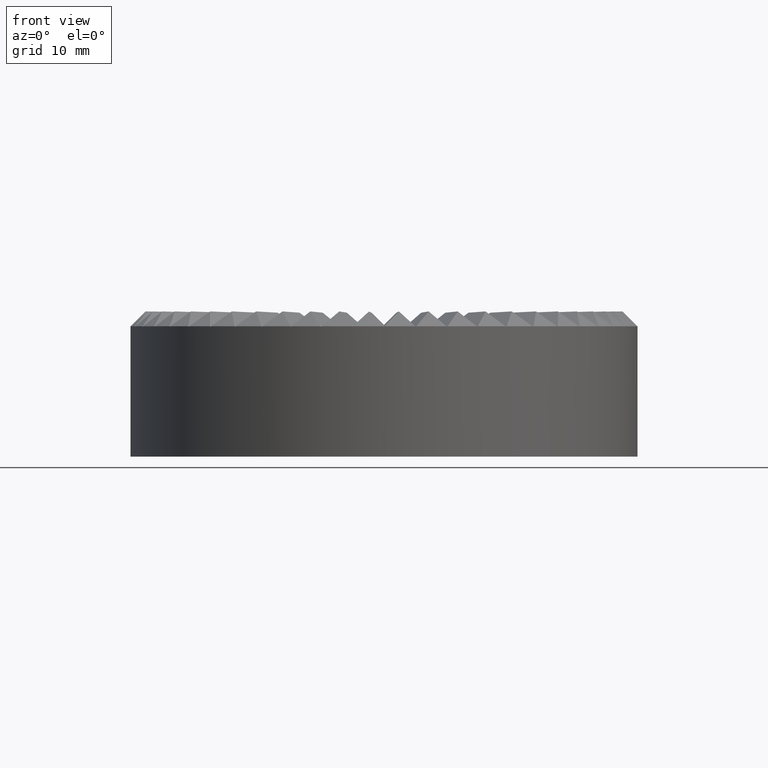
[diagram: clean part render]
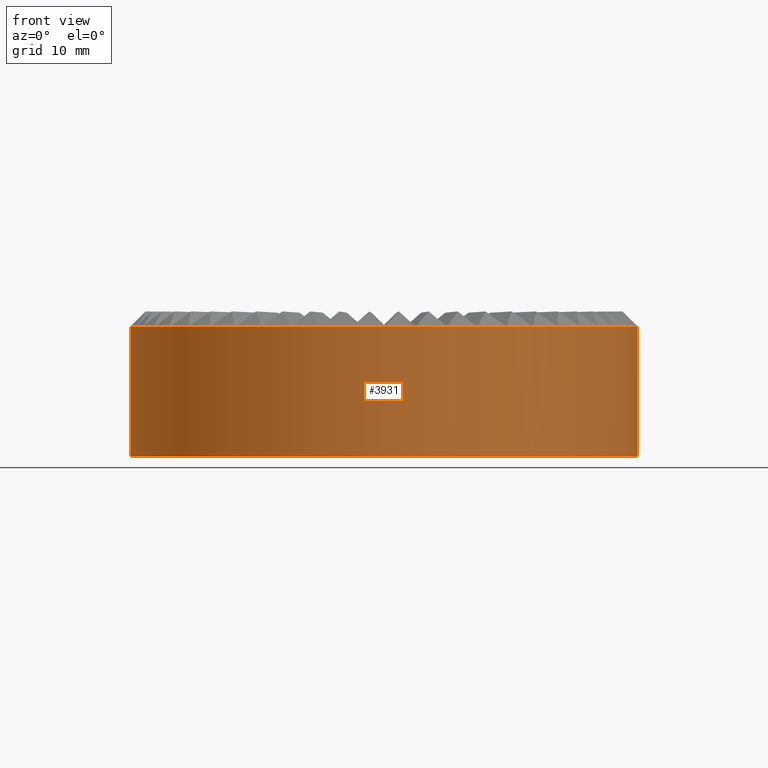
[diagram: same view with one face highlighted and labeled with its STEP entity id]
A machine part, front view. The second image highlights one B-rep face of the part: STEP entity #3931.
In plain terms, the highlighted cylindrical surface (partial cylindrical patch) has radius 35 mm, axis along (-0, -0, -1).
Its self-contained STEP definition (entity closure, byte-faithful):
#1 = CARTESIAN_POINT ( 'NONE',  ( 26.96796349715251800, -22.30983964120427400, 17.90946066998845200 ) ) ;
#19 = VERTEX_POINT ( 'NONE', #4170 ) ;
#48 = CARTESIAN_POINT ( 'NONE',  ( 33.26829880005293200, -10.87295750011537800, 17.96981905674909200 ) ) ;
#49 = CARTESIAN_POINT ( 'NONE',  ( -12.88435934396399000, -32.54217700608870000, 17.90946066998845200 ) ) ;
#55 =( BOUNDED_CURVE ( )  B_SPLINE_CURVE ( 3, ( #3229, #203, #2800, #3671 ),
 .UNSPECIFIED., .F., .F. ) 
 B_SPLINE_CURVE_WITH_KNOTS ( ( 4, 4 ),
 ( 1.539395891932035400, 1.541981351380298700 ),
 .UNSPECIFIED. ) 
 CURVE ( )  GEOMETRIC_REPRESENTATION_ITEM ( )  RATIONAL_B_SPLINE_CURVE ( ( 1.000000000000000000, 0.9999994429500309600, 0.9999994429500309600, 1.000000000000000000 ) ) 
 REPRESENTATION_ITEM ( '' )  );
#59 = CARTESIAN_POINT ( 'NONE',  ( 26.96796349715251800, -22.30983964120427400, 17.90946066998845200 ) ) ;
#61 = VERTEX_POINT ( 'NONE', #4122 ) ;
#64 = ORIENTED_EDGE ( 'NONE', *, *, #3702, .F. ) ;
#76 = CARTESIAN_POINT ( 'NONE',  ( -26.92947933370435400, -22.35629783001889600, 17.96981905674907400 ) ) ;
#81 = EDGE_CURVE ( 'NONE', #3242, #3948, #2136, .T. ) ;
#86 = DIRECTION ( 'NONE',  ( 1.000000000000000000, 0.0000000000000000000, 0.0000000000000000000 ) ) ;
#91 = ORIENTED_EDGE ( 'NONE', *, *, #2035, .T. ) ;
#97 = AXIS2_PLACEMENT_3D ( 'NONE', #488, #3516, #934 ) ;
#112 = EDGE_CURVE ( 'NONE', #2152, #1220, #2485, .T. ) ;
#113 = EDGE_CURVE ( 'NONE', #5076, #4767, #3493, .T. ) ;
#117 =( BOUNDED_CURVE ( )  B_SPLINE_CURVE ( 3, ( #1950, #4559, #216, #4998 ),
 .UNSPECIFIED., .F., .F. ) 
 B_SPLINE_CURVE_WITH_KNOTS ( ( 4, 4 ),
 ( 1.539395891932035400, 1.541981351380298700 ),
 .UNSPECIFIED. ) 
 CURVE ( )  GEOMETRIC_REPRESENTATION_ITEM ( )  RATIONAL_B_SPLINE_CURVE ( ( 1.000000000000000000, 0.9999994429500309600, 0.9999994429500309600, 1.000000000000000000 ) ) 
 REPRESENTATION_ITEM ( '' )  );
#125 = DIRECTION ( 'NONE',  ( 0.0000000000000000000, 0.0000000000000000000, -1.000000000000000000 ) ) ;
#146 = CARTESIAN_POINT ( 'NONE',  ( -26.91019224074412000, -22.37948957340617500, 18.00000000000002500 ) ) ;
#160 = VERTEX_POINT ( 'NONE', #2557 ) ;
#161 = EDGE_CURVE ( 'NONE', #303, #2579, #1467, .T. ) ;
#162 = CARTESIAN_POINT ( 'NONE',  ( 34.92513676974012800, -2.287973254858245200, 18.00000000000002500 ) ) ;
#176 = CARTESIAN_POINT ( 'NONE',  ( 35.00000000000000700, 4.286263797015736500E-015, 21.00000000000000000 ) ) ;
#182 = CARTESIAN_POINT ( 'NONE',  ( -4.386663174750896800, -34.72401454600669300, 17.90946066998845200 ) ) ;
#184 = EDGE_CURVE ( 'NONE', #1762, #916, #208, .T. ) ;
#198 = VERTEX_POINT ( 'NONE', #433 ) ;
#203 = CARTESIAN_POINT ( 'NONE',  ( -23.93716031508538900, -25.53455043463304000, 17.93963926326689800 ) ) ;
#208 = CIRCLE ( 'NONE', #687, 35.00000000000000700 ) ;
#209 = CARTESIAN_POINT ( 'NONE',  ( 16.88781124708613700, -30.65620232728947800, 17.93963926326689800 ) ) ;
#214 = VERTEX_POINT ( 'NONE', #2150 ) ;
#216 = CARTESIAN_POINT ( 'NONE',  ( 12.94043596769117800, -32.51993276153874700, 17.96981905674907400 ) ) ;
#218 = CARTESIAN_POINT ( 'NONE',  ( 29.59986611443425300, -18.67747108169539400, 18.00000000000002500 ) ) ;
#225 = CARTESIAN_POINT ( 'NONE',  ( 29.55147739257044700, -18.75393782426502700, 17.90946066998845200 ) ) ;
#228 = CARTESIAN_POINT ( 'NONE',  ( 12.85631384314965500, -32.55328100538186200, 17.93963926326691500 ) ) ;
#233 = ORIENTED_EDGE ( 'NONE', *, *, #774, .T. ) ;
#235 = CARTESIAN_POINT ( 'NONE',  ( 33.31483006593465000, -10.72949661810364400, 18.00000000000002500 ) ) ;
#237 = CARTESIAN_POINT ( 'NONE',  ( 16.86137859355985900, -30.67073380153533400, 17.90946066998845200 ) ) ;
#247 = CARTESIAN_POINT ( 'NONE',  ( -12.91240484477786200, -32.53107300679573700, 17.93963926326691500 ) ) ;
#268 = CARTESIAN_POINT ( 'NONE',  ( 16.78202438765433900, -30.71422565281722700, 18.00000000000002500 ) ) ;
#295 = DIRECTION ( 'NONE',  ( 1.000000000000000000, 0.0000000000000000000, 0.0000000000000000000 ) ) ;
#297 =( BOUNDED_CURVE ( )  B_SPLINE_CURVE ( 3, ( #2273, #1841, #3151, #545 ),
 .UNSPECIFIED., .F., .F. ) 
 B_SPLINE_CURVE_WITH_KNOTS ( ( 4, 4 ),
 ( 4.741203955799287300, 4.743789415247550600 ),
 .UNSPECIFIED. ) 
 CURVE ( )  GEOMETRIC_REPRESENTATION_ITEM ( )  RATIONAL_B_SPLINE_CURVE ( ( 1.000000000000000000, 0.9999994429500309600, 0.9999994429500309600, 1.000000000000000000 ) ) 
 REPRESENTATION_ITEM ( '' )  );
#303 = VERTEX_POINT ( 'NONE', #4864 ) ;
#310 = CARTESIAN_POINT ( 'NONE',  ( -29.55147739257070300, -18.75393782426461100, 17.90946066998845200 ) ) ;
#316 = CARTESIAN_POINT ( 'NONE',  ( -31.69459770250966100, -14.84767275787648300, 17.96981905674908800 ) ) ;
#329 = DIRECTION ( 'NONE',  ( 1.000000000000000000, -2.664535259100375700E-015, 0.0000000000000000000 ) ) ;
#340 = DIRECTION ( 'NONE',  ( 0.0000000000000000000, 0.0000000000000000000, -1.000000000000000000 ) ) ;
#346 = CARTESIAN_POINT ( 'NONE',  ( 24.02503371427128800, -25.45187134629059900, 18.00000000000002500 ) ) ;
#351 = DIRECTION ( 'NONE',  ( 1.000000000000000000, 8.881784197001250400E-016, 0.0000000000000000000 ) ) ;
#361 = ORIENTED_EDGE ( 'NONE', *, *, #5019, .F. ) ;
#371 = CARTESIAN_POINT ( 'NONE',  ( -33.26829880005308100, -10.87295750011489700, 17.96981905674907400 ) ) ;
#387 = CARTESIAN_POINT ( 'NONE',  ( -12.85631384315014200, -32.55328100538167700, 17.93963926326689800 ) ) ;
#393 = CARTESIAN_POINT ( 'NONE',  ( -4.476425944681990300, -34.71255696087192900, 18.00000000000002500 ) ) ;
#394 =( BOUNDED_CURVE ( )  B_SPLINE_CURVE ( 3, ( #4047, #1015, #1886, #4933 ),
 .UNSPECIFIED., .F., .F. ) 
 B_SPLINE_CURVE_WITH_KNOTS ( ( 4, 4 ),
 ( 4.741203955799287300, 4.743789415247550600 ),
 .UNSPECIFIED. ) 
 CURVE ( )  GEOMETRIC_REPRESENTATION_ITEM ( )  RATIONAL_B_SPLINE_CURVE ( ( 1.000000000000000000, 0.9999994429500309600, 0.9999994429500309600, 1.000000000000000000 ) ) 
 REPRESENTATION_ITEM ( '' )  );
#399 = DIRECTION ( 'NONE',  ( 0.0000000000000000000, 0.0000000000000000000, 1.000000000000000000 ) ) ;
#402 = EDGE_CURVE ( 'NONE', #4609, #621, #3906, .T. ) ;
#403 = ORIENTED_EDGE ( 'NONE', *, *, #1789, .T. ) ;
#423 = CARTESIAN_POINT ( 'NONE',  ( -20.64562381141166400, -28.26231090052036500, 18.00000000000002500 ) ) ;
#425 = CARTESIAN_POINT ( 'NONE',  ( 8.674929996969645200, -33.90791204714017200, 17.93963926326691500 ) ) ;
#431 = AXIS2_PLACEMENT_3D ( 'NONE', #3740, #1136, #4178 ) ;
#433 = CARTESIAN_POINT ( 'NONE',  ( -34.39689518587162800, -6.469435954715218700, 18.00000000000002500 ) ) ;
#444 = EDGE_CURVE ( 'NONE', #4939, #1023, #4006, .T. ) ;
#445 = EDGE_CURVE ( 'NONE', #3126, #3960, #3147, .T. ) ;
#453 = CARTESIAN_POINT ( 'NONE',  ( -12.80017989531912500, -32.57538019190978700, 18.00000000000002500 ) ) ;
#454 = CARTESIAN_POINT ( 'NONE',  ( -23.95914870750433300, -25.51390195974919100, 17.90946066998845200 ) ) ;
#468 = CARTESIAN_POINT ( 'NONE',  ( 20.54808088273392400, -28.33332458229252300, 17.93963926326691500 ) ) ;
#473 = EDGE_CURVE ( 'NONE', #3753, #2609, #4893, .T. ) ;
#477 = EDGE_CURVE ( 'NONE', #1073, #2380, #4145, .T. ) ;
#488 = CARTESIAN_POINT ( 'NONE',  ( 0.0000000000000000000, 0.0000000000000000000, 18.00000000000002500 ) ) ;
#489 = CARTESIAN_POINT ( 'NONE',  ( 34.38570588963095500, -6.528716590626075300, 17.93963926326689800 ) ) ;
#495 = ORIENTED_EDGE ( 'NONE', *, *, #1350, .T. ) ;
#496 = CIRCLE ( 'NONE', #3777, 35.00000000000000700 ) ;
#503 = CARTESIAN_POINT ( 'NONE',  ( 20.57248383023640400, -28.31559480312327900, 17.90946066998845200 ) ) ;
#533 = CARTESIAN_POINT ( 'NONE',  ( 4.476425944681505300, -34.71255696087200000, 18.00000000000002500 ) ) ;
#544 = ORIENTED_EDGE ( 'NONE', *, *, #81, .F. ) ;
#545 = CARTESIAN_POINT ( 'NONE',  ( 26.96796349715251800, -22.30983964120427400, 17.90946066998845200 ) ) ;
#551 = CARTESIAN_POINT ( 'NONE',  ( -34.92710859097909500, -2.257874071526628800, 17.96981905674907400 ) ) ;
#569 = CARTESIAN_POINT ( 'NONE',  ( 33.29629916685060900, -10.78690741781446900, 17.93963926326689800 ) ) ;
#574 = CARTESIAN_POINT ( 'NONE',  ( -33.28697807033047700, -10.81559480312284200, 17.90946066998845200 ) ) ;
#581 = ORIENTED_EDGE ( 'NONE', *, *, #5440, .T. ) ;
#590 = VERTEX_POINT ( 'NONE', #3469 ) ;
#605 = CARTESIAN_POINT ( 'NONE',  ( 31.66894683631062100, -14.90227520477768800, 17.90946066998845200 ) ) ;
#610 = VERTEX_POINT ( 'NONE', #453 ) ;
#621 = VERTEX_POINT ( 'NONE', #49 ) ;
#636 =( BOUNDED_CURVE ( )  B_SPLINE_CURVE ( 3, ( #1402, #5313, #993, #4022 ),
 .UNSPECIFIED., .F., .F. ) 
 B_SPLINE_CURVE_WITH_KNOTS ( ( 4, 4 ),
 ( 4.741203955799287300, 4.743789415247550600 ),
 .UNSPECIFIED. ) 
 CURVE ( )  GEOMETRIC_REPRESENTATION_ITEM ( )  RATIONAL_B_SPLINE_CURVE ( ( 1.000000000000000000, 0.9999994429500309600, 0.9999994429500309600, 1.000000000000000000 ) ) 
 REPRESENTATION_ITEM ( '' )  );
#639 = CARTESIAN_POINT ( 'NONE',  ( 23.95914870750396400, -25.51390195974953900, 17.90946066998845200 ) ) ;
#653 = VERTEX_POINT ( 'NONE', #2638 ) ;
#656 = ORIENTED_EDGE ( 'NONE', *, *, #2333, .T. ) ;
#658 = VERTEX_POINT ( 'NONE', #3963 ) ;
#671 = CARTESIAN_POINT ( 'NONE',  ( 29.59986611443425300, -18.67747108169539400, 18.00000000000002500 ) ) ;
#679 = ORIENTED_EDGE ( 'NONE', *, *, #444, .T. ) ;
#687 = AXIS2_PLACEMENT_3D ( 'NONE', #1224, #3833, #794 ) ;
#688 = CARTESIAN_POINT ( 'NONE',  ( 0.0000000000000000000, -35.00000000000000000, 17.90946066998845200 ) ) ;
#707 = CARTESIAN_POINT ( 'NONE',  ( 16.80849452333031700, -30.69976256761757200, 17.96981905674908800 ) ) ;
#709 =( BOUNDED_CURVE ( )  B_SPLINE_CURVE ( 3, ( #4618, #1579, #5476, #2888 ),
 .UNSPECIFIED., .F., .F. ) 
 B_SPLINE_CURVE_WITH_KNOTS ( ( 4, 4 ),
 ( 1.539395891932035400, 1.541981351380298700 ),
 .UNSPECIFIED. ) 
 CURVE ( )  GEOMETRIC_REPRESENTATION_ITEM ( )  RATIONAL_B_SPLINE_CURVE ( ( 1.000000000000000000, 0.9999994429500309600, 0.9999994429500309600, 1.000000000000000000 ) ) 
 REPRESENTATION_ITEM ( '' )  );
#711 =( BOUNDED_CURVE ( )  B_SPLINE_CURVE ( 3, ( #162, #2751, #1459, #4499 ),
 .UNSPECIFIED., .F., .F. ) 
 B_SPLINE_CURVE_WITH_KNOTS ( ( 4, 4 ),
 ( 4.741203955799287300, 4.743789415247550600 ),
 .UNSPECIFIED. ) 
 CURVE ( )  GEOMETRIC_REPRESENTATION_ITEM ( )  RATIONAL_B_SPLINE_CURVE ( ( 1.000000000000000000, 0.9999994429500309600, 0.9999994429500309600, 1.000000000000000000 ) ) 
 REPRESENTATION_ITEM ( '' )  );
#713 = CARTESIAN_POINT ( 'NONE',  ( -12.88435934396399000, -32.54217700608870000, 17.90946066998845200 ) ) ;
#714 = CARTESIAN_POINT ( 'NONE',  ( 31.66894683631062100, -14.90227520477768800, 17.90946066998845200 ) ) ;
#727 = EDGE_CURVE ( 'NONE', #4526, #1065, #1017, .T. ) ;
#743 = CARTESIAN_POINT ( 'NONE',  ( -29.51911944327541100, -18.80485302103042900, 17.96981905674907400 ) ) ;
#751 = CARTESIAN_POINT ( 'NONE',  ( 0.0000000000000000000, 0.0000000000000000000, 18.00000000000002500 ) ) ;
#764 = VERTEX_POINT ( 'NONE', #1510 ) ;
#769 = EDGE_CURVE ( 'NONE', #5145, #1909, #2727, .T. ) ;
#774 = EDGE_CURVE ( 'NONE', #4671, #214, #893, .T. ) ;
#781 = EDGE_CURVE ( 'NONE', #1073, #610, #2041, .T. ) ;
#782 = ORIENTED_EDGE ( 'NONE', *, *, #3518, .T. ) ;
#784 = VERTEX_POINT ( 'NONE', #235 ) ;
#794 = DIRECTION ( 'NONE',  ( 1.000000000000000000, 0.0000000000000000000, 0.0000000000000000000 ) ) ;
#801 = VERTEX_POINT ( 'NONE', #3710 ) ;
#825 = CARTESIAN_POINT ( 'NONE',  ( 12.96845266586069400, -32.50875628893439300, 18.00000000000002500 ) ) ;
#847 = VERTEX_POINT ( 'NONE', #5087 ) ;
#859 = CARTESIAN_POINT ( 'NONE',  ( 0.0000000000000000000, 0.0000000000000000000, 18.00000000000002500 ) ) ;
#865 = CARTESIAN_POINT ( 'NONE',  ( 34.93282948950679400, -2.167564002737261600, 17.93963926326689800 ) ) ;
#868 = CARTESIAN_POINT ( 'NONE',  ( 27.02555448359779800, -22.24004057671854500, 18.00000000000002500 ) ) ;
#874 = EDGE_CURVE ( 'NONE', #3948, #5431, #3973, .T. ) ;
#889 =( BOUNDED_CURVE ( )  B_SPLINE_CURVE ( 3, ( #4214, #1181, #1611, #4661 ),
 .UNSPECIFIED., .F., .F. ) 
 B_SPLINE_CURVE_WITH_KNOTS ( ( 4, 4 ),
 ( 4.741203955799287300, 4.743789415247550600 ),
 .UNSPECIFIED. ) 
 CURVE ( )  GEOMETRIC_REPRESENTATION_ITEM ( )  RATIONAL_B_SPLINE_CURVE ( ( 1.000000000000000000, 0.9999994429500309600, 0.9999994429500309600, 1.000000000000000000 ) ) 
 REPRESENTATION_ITEM ( '' )  );
#892 = CARTESIAN_POINT ( 'NONE',  ( 20.49920633030125600, -28.36868942739050000, 18.00000000000002500 ) ) ;
#893 = LINE ( 'NONE', #1096, #1899 ) ;
#912 = CARTESIAN_POINT ( 'NONE',  ( -16.86137859356028600, -30.67073380153509300, 17.90946066998845200 ) ) ;
#916 = VERTEX_POINT ( 'NONE', #1666 ) ;
#920 = VERTEX_POINT ( 'NONE', #2103 ) ;
#923 = CIRCLE ( 'NONE', #3458, 35.00000000000000700 ) ;
#931 = CARTESIAN_POINT ( 'NONE',  ( 35.00000000000000700, 4.286263797015736500E-015, 0.0000000000000000000 ) ) ;
#932 = CARTESIAN_POINT ( 'NONE',  ( -16.80849452333075100, -30.69976256761732000, 17.96981905674907800 ) ) ;
#933 = AXIS2_PLACEMENT_3D ( 'NONE', #5179, #1258, #2572 ) ;
#934 = DIRECTION ( 'NONE',  ( 1.000000000000000000, -8.881784197001250400E-016, 0.0000000000000000000 ) ) ;
#935 = CARTESIAN_POINT ( 'NONE',  ( 34.38005377550408100, -6.558346010500499400, 17.90946066998845200 ) ) ;
#943 = ORIENTED_EDGE ( 'NONE', *, *, #5598, .F. ) ;
#967 = ORIENTED_EDGE ( 'NONE', *, *, #2471, .F. ) ;
#969 = ORIENTED_EDGE ( 'NONE', *, *, #5168, .F. ) ;
#991 =( BOUNDED_CURVE ( )  B_SPLINE_CURVE ( 3, ( #4314, #3881, #5196, #2591 ),
 .UNSPECIFIED., .F., .F. ) 
 B_SPLINE_CURVE_WITH_KNOTS ( ( 4, 4 ),
 ( 1.539395891932035400, 1.541981351380298700 ),
 .UNSPECIFIED. ) 
 CURVE ( )  GEOMETRIC_REPRESENTATION_ITEM ( )  RATIONAL_B_SPLINE_CURVE ( ( 1.000000000000000000, 0.9999994429500309600, 0.9999994429500309600, 1.000000000000000000 ) ) 
 REPRESENTATION_ITEM ( '' )  );
#993 = CARTESIAN_POINT ( 'NONE',  ( 34.37440166137722700, -6.587975430374943800, 17.93963926326691500 ) ) ;
#1004 = VERTEX_POINT ( 'NONE', #4365 ) ;
#1015 = CARTESIAN_POINT ( 'NONE',  ( -16.91422509326292500, -30.64163669491811600, 17.96981905674909200 ) ) ;
#1016 = EDGE_CURVE ( 'NONE', #1332, #2473, #1532, .T. ) ;
#1017 = CIRCLE ( 'NONE', #4253, 35.00000000000000700 ) ;
#1023 = VERTEX_POINT ( 'NONE', #533 ) ;
#1026 = AXIS2_PLACEMENT_3D ( 'NONE', #1536, #4586, #1979 ) ;
#1031 = CARTESIAN_POINT ( 'NONE',  ( 0.0000000000000000000, 0.0000000000000000000, 18.00000000000002500 ) ) ;
#1038 = CARTESIAN_POINT ( 'NONE',  ( 0.0000000000000000000, 0.0000000000000000000, 18.00000000000002500 ) ) ;
#1042 = EDGE_CURVE ( 'NONE', #198, #5411, #1218, .T. ) ;
#1051 = CARTESIAN_POINT ( 'NONE',  ( -4.326806608244408100, -34.73153688542690500, 17.96981905674907400 ) ) ;
#1055 =( BOUNDED_CURVE ( )  B_SPLINE_CURVE ( 3, ( #5265, #2230, #76, #3112 ),
 .UNSPECIFIED., .F., .F. ) 
 B_SPLINE_CURVE_WITH_KNOTS ( ( 4, 4 ),
 ( 1.539395891932035400, 1.541981351380298700 ),
 .UNSPECIFIED. ) 
 CURVE ( )  GEOMETRIC_REPRESENTATION_ITEM ( )  RATIONAL_B_SPLINE_CURVE ( ( 1.000000000000000000, 0.9999994429500309600, 0.9999994429500309600, 1.000000000000000000 ) ) 
 REPRESENTATION_ITEM ( '' )  );
#1057 = EDGE_CURVE ( 'NONE', #653, #2523, #4920, .T. ) ;
#1063 = CARTESIAN_POINT ( 'NONE',  ( 0.0000000000000000000, 0.0000000000000000000, 18.00000000000002500 ) ) ;
#1065 = VERTEX_POINT ( 'NONE', #146 ) ;
#1073 = VERTEX_POINT ( 'NONE', #4929 ) ;
#1096 = CARTESIAN_POINT ( 'NONE',  ( -35.00000000000000700, 0.0000000000000000000, 21.00000000000000000 ) ) ;
#1100 = CARTESIAN_POINT ( 'NONE',  ( -8.645704270292387900, -33.91537568005941900, 17.96981905674907400 ) ) ;
#1110 = CARTESIAN_POINT ( 'NONE',  ( 0.0000000000000000000, 0.0000000000000000000, 18.00000000000002500 ) ) ;
#1123 = EDGE_CURVE ( 'NONE', #3242, #764, #4549, .T. ) ;
#1127 = VERTEX_POINT ( 'NONE', #2354 ) ;
#1136 = DIRECTION ( 'NONE',  ( 0.0000000000000000000, 0.0000000000000000000, -1.000000000000000000 ) ) ;
#1143 = EDGE_CURVE ( 'NONE', #1758, #2469, #117, .T. ) ;
#1144 = ORIENTED_EDGE ( 'NONE', *, *, #5314, .T. ) ;
#1148 = ORIENTED_EDGE ( 'NONE', *, *, #3225, .T. ) ;
#1159 = CARTESIAN_POINT ( 'NONE',  ( 34.39689518587152900, -6.469435954715690300, 18.00000000000002500 ) ) ;
#1169 = VERTEX_POINT ( 'NONE', #688 ) ;
#1176 = ORIENTED_EDGE ( 'NONE', *, *, #5441, .F. ) ;
#1181 = CARTESIAN_POINT ( 'NONE',  ( -24.00309878107949800, -25.47257660219431600, 17.96981905674909200 ) ) ;
#1184 = CIRCLE ( 'NONE', #4237, 35.00000000000000700 ) ;
#1186 = DIRECTION ( 'NONE',  ( 0.0000000000000000000, 0.0000000000000000000, -1.000000000000000000 ) ) ;
#1189 = DIRECTION ( 'NONE',  ( 1.000000000000000000, 0.0000000000000000000, 0.0000000000000000000 ) ) ;
#1201 = EDGE_CURVE ( 'NONE', #801, #1023, #709, .T. ) ;
#1203 = CARTESIAN_POINT ( 'NONE',  ( 8.791764998255262100, -33.87779314263923400, 18.00000000000002500 ) ) ;
#1209 = ORIENTED_EDGE ( 'NONE', *, *, #3378, .T. ) ;
#1211 = CARTESIAN_POINT ( 'NONE',  ( -8.733362104570234800, -33.89290923186402400, 17.93963926326691500 ) ) ;
#1218 = CIRCLE ( 'NONE', #4486, 35.00000000000000700 ) ;
#1220 = VERTEX_POINT ( 'NONE', #1159 ) ;
#1224 = CARTESIAN_POINT ( 'NONE',  ( 0.0000000000000000000, 0.0000000000000000000, 18.00000000000002500 ) ) ;
#1241 = EDGE_LOOP ( 'NONE', ( #64, #1209, #4984, #943, #5178, #1975, #2279, #4560, #2587, #3976, #403, #5355, #1317, #3048, #3650, #4092, #1401, #5303, #5575, #581, #1364, #544, #1526, #1542, #3318, #3766, #2576, #2642, #5373, #2695, #969, #91, #2754, #361, #679, #4722, #3579, #1148, #3899, #4614, #2771, #4374, #3848, #4421, #4712, #2626, #4977, #4141, #4378, #2295, #1284, #4031, #1144, #2918, #1176, #656, #4558, #4837, #1324, #1780, #967, #782, #4201, #3732, #5448, #4341, #1892, #1309, #1938, #1362, #495, #4046, #1911, #2244, #2336, #3924, #5028, #233, #3063 ) ) ;
#1243 = DIRECTION ( 'NONE',  ( 0.0000000000000000000, 0.0000000000000000000, -1.000000000000000000 ) ) ;
#1247 = CARTESIAN_POINT ( 'NONE',  ( -34.36298254833807400, -6.647212226385852900, 18.00000000000002500 ) ) ;
#1258 = DIRECTION ( 'NONE',  ( -0.0000000000000000000, -0.0000000000000000000, -1.000000000000000000 ) ) ;
#1259 =( BOUNDED_CURVE ( )  B_SPLINE_CURVE ( 3, ( #1514, #4108, #228, #3256 ),
 .UNSPECIFIED., .F., .F. ) 
 B_SPLINE_CURVE_WITH_KNOTS ( ( 4, 4 ),
 ( 4.741203955799287300, 4.743789415247550600 ),
 .UNSPECIFIED. ) 
 CURVE ( )  GEOMETRIC_REPRESENTATION_ITEM ( )  RATIONAL_B_SPLINE_CURVE ( ( 1.000000000000000000, 0.9999994429500309600, 0.9999994429500309600, 1.000000000000000000 ) ) 
 REPRESENTATION_ITEM ( '' )  );
#1271 = CIRCLE ( 'NONE', #3252, 35.00000000000000700 ) ;
#1272 = CARTESIAN_POINT ( 'NONE',  ( -31.66894683631083000, -14.90227520477724500, 17.90946066998845200 ) ) ;
#1274 = VERTEX_POINT ( 'NONE', #671 ) ;
#1283 = CARTESIAN_POINT ( 'NONE',  ( 8.704146050769693900, -33.90041063950214800, 17.90946066998845200 ) ) ;
#1284 = ORIENTED_EDGE ( 'NONE', *, *, #3105, .F. ) ;
#1287 = DIRECTION ( 'NONE',  ( 1.000000000000000000, 0.0000000000000000000, 0.0000000000000000000 ) ) ;
#1299 =( BOUNDED_CURVE ( )  B_SPLINE_CURVE ( 3, ( #3597, #569, #1442, #4478 ),
 .UNSPECIFIED., .F., .F. ) 
 B_SPLINE_CURVE_WITH_KNOTS ( ( 4, 4 ),
 ( 1.539395891932035400, 1.541981351380298700 ),
 .UNSPECIFIED. ) 
 CURVE ( )  GEOMETRIC_REPRESENTATION_ITEM ( )  RATIONAL_B_SPLINE_CURVE ( ( 1.000000000000000000, 0.9999994429500309600, 0.9999994429500309600, 1.000000000000000000 ) ) 
 REPRESENTATION_ITEM ( '' )  );
#1306 = CARTESIAN_POINT ( 'NONE',  ( 33.25890356469778200, -10.90162069025218400, 18.00000000000002500 ) ) ;
#1309 = ORIENTED_EDGE ( 'NONE', *, *, #3992, .T. ) ;
#1317 = ORIENTED_EDGE ( 'NONE', *, *, #3817, .F. ) ;
#1324 = ORIENTED_EDGE ( 'NONE', *, *, #727, .T. ) ;
#1328 = CARTESIAN_POINT ( 'NONE',  ( 34.38005377550408100, -6.558346010500499400, 17.90946066998845200 ) ) ;
#1330 = DIRECTION ( 'NONE',  ( 0.0000000000000000000, 0.0000000000000000000, -1.000000000000000000 ) ) ;
#1332 = VERTEX_POINT ( 'NONE', #5486 ) ;
#1350 = EDGE_CURVE ( 'NONE', #653, #4422, #2714, .T. ) ;
#1352 = CARTESIAN_POINT ( 'NONE',  ( 4.296871081744544800, -34.73524001510379100, 18.00000000000002500 ) ) ;
#1362 = ORIENTED_EDGE ( 'NONE', *, *, #1057, .F. ) ;
#1364 = ORIENTED_EDGE ( 'NONE', *, *, #874, .F. ) ;
#1371 = CARTESIAN_POINT ( 'NONE',  ( 0.03016370196441605500, -35.00000000000000700, 17.93963926326689800 ) ) ;
#1374 = VERTEX_POINT ( 'NONE', #2503 ) ;
#1396 = VERTEX_POINT ( 'NONE', #1721 ) ;
#1401 = ORIENTED_EDGE ( 'NONE', *, *, #3436, .T. ) ;
#1402 = CARTESIAN_POINT ( 'NONE',  ( 34.36298254833798200, -6.647212226386325400, 18.00000000000002500 ) ) ;
#1415 = CARTESIAN_POINT ( 'NONE',  ( -0.06032737872481686700, -34.99996100649675400, 17.96981905674909200 ) ) ;
#1433 = AXIS2_PLACEMENT_3D ( 'NONE', #4160, #1556, #4597 ) ;
#1441 = EDGE_CURVE ( 'NONE', #160, #847, #2073, .T. ) ;
#1442 = CARTESIAN_POINT ( 'NONE',  ( 33.30558317055704300, -10.75820800682090600, 17.96981905674907400 ) ) ;
#1457 = EDGE_CURVE ( 'NONE', #5076, #1374, #2440, .T. ) ;
#1459 = CARTESIAN_POINT ( 'NONE',  ( 34.92904150047223100, -2.227772364314941600, 17.93963926326691500 ) ) ;
#1464 = DIRECTION ( 'NONE',  ( 1.000000000000000000, 0.0000000000000000000, 0.0000000000000000000 ) ) ;
#1467 =( BOUNDED_CURVE ( )  B_SPLINE_CURVE ( 3, ( #393, #5587, #4731, #2124 ),
 .UNSPECIFIED., .F., .T. ) 
 B_SPLINE_CURVE_WITH_KNOTS ( ( 4, 4 ),
 ( 4.741203955799287300, 4.743789415247550600 ),
 .UNSPECIFIED. ) 
 CURVE ( )  GEOMETRIC_REPRESENTATION_ITEM ( )  RATIONAL_B_SPLINE_CURVE ( ( 1.000000000000000000, 0.9999994429500309600, 0.9999994429500309600, 1.000000000000000000 ) ) 
 REPRESENTATION_ITEM ( '' )  );
#1469 = DIRECTION ( 'NONE',  ( 1.000000000000000000, 8.881784197001250400E-016, 0.0000000000000000000 ) ) ;
#1486 = VERTEX_POINT ( 'NONE', #59 ) ;
#1489 = EDGE_CURVE ( 'NONE', #4284, #1065, #1055, .T. ) ;
#1493 = DIRECTION ( 'NONE',  ( 0.0000000000000000000, 0.0000000000000000000, -1.000000000000000000 ) ) ;
#1498 = DIRECTION ( 'NONE',  ( 1.000000000000000000, 0.0000000000000000000, 0.0000000000000000000 ) ) ;
#1506 = CIRCLE ( 'NONE', #4947, 35.00000000000000700 ) ;
#1510 = CARTESIAN_POINT ( 'NONE',  ( 20.64562381141125500, -28.26231090052066400, 18.00000000000002500 ) ) ;
#1513 = CARTESIAN_POINT ( 'NONE',  ( 31.66894683631062100, -14.90227520477768800, 17.90946066998845200 ) ) ;
#1514 = CARTESIAN_POINT ( 'NONE',  ( 12.80017989531865500, -32.57538019190997100, 18.00000000000002500 ) ) ;
#1517 = CARTESIAN_POINT ( 'NONE',  ( -8.674929996970147900, -33.90791204714003700, 17.93963926326689800 ) ) ;
#1526 = ORIENTED_EDGE ( 'NONE', *, *, #1123, .T. ) ;
#1532 =( BOUNDED_CURVE ( )  B_SPLINE_CURVE ( 3, ( #1306, #48, #5432, #3363 ),
 .UNSPECIFIED., .F., .F. ) 
 B_SPLINE_CURVE_WITH_KNOTS ( ( 4, 4 ),
 ( 4.741203955799287300, 4.743789415247550600 ),
 .UNSPECIFIED. ) 
 CURVE ( )  GEOMETRIC_REPRESENTATION_ITEM ( )  RATIONAL_B_SPLINE_CURVE ( ( 1.000000000000000000, 0.9999994429500309600, 0.9999994429500309600, 1.000000000000000000 ) ) 
 REPRESENTATION_ITEM ( '' )  );
#1536 = CARTESIAN_POINT ( 'NONE',  ( 0.0000000000000000000, 0.0000000000000000000, 18.00000000000002500 ) ) ;
#1542 = ORIENTED_EDGE ( 'NONE', *, *, #2189, .F. ) ;
#1543 = DIRECTION ( 'NONE',  ( 1.000000000000000000, 0.0000000000000000000, 0.0000000000000000000 ) ) ;
#1556 = DIRECTION ( 'NONE',  ( 0.0000000000000000000, 0.0000000000000000000, -1.000000000000000000 ) ) ;
#1572 =( BOUNDED_CURVE ( )  B_SPLINE_CURVE ( 3, ( #1934, #4539, #2812, #218 ),
 .UNSPECIFIED., .F., .F. ) 
 B_SPLINE_CURVE_WITH_KNOTS ( ( 4, 4 ),
 ( 1.539395891932035400, 1.541981351380298700 ),
 .UNSPECIFIED. ) 
 CURVE ( )  GEOMETRIC_REPRESENTATION_ITEM ( )  RATIONAL_B_SPLINE_CURVE ( ( 1.000000000000000000, 0.9999994429500309600, 0.9999994429500309600, 1.000000000000000000 ) ) 
 REPRESENTATION_ITEM ( '' )  );
#1579 = CARTESIAN_POINT ( 'NONE',  ( 4.416589026915379400, -34.72023403170329200, 17.93963926326689800 ) ) ;
#1611 = CARTESIAN_POINT ( 'NONE',  ( -23.98113709992329500, -25.49325348486534900, 17.93963926326691500 ) ) ;
#1618 = CARTESIAN_POINT ( 'NONE',  ( -31.66894683631083000, -14.90227520477724500, 17.90946066998845200 ) ) ;
#1637 = EDGE_CURVE ( 'NONE', #2171, #4239, #3308, .T. ) ;
#1655 = CARTESIAN_POINT ( 'NONE',  ( -8.791764998255750600, -33.87779314263911300, 18.00000000000002500 ) ) ;
#1666 = CARTESIAN_POINT ( 'NONE',  ( -4.296871081745030600, -34.73524001510374100, 18.00000000000002500 ) ) ;
#1694 = CARTESIAN_POINT ( 'NONE',  ( -26.96796349715282700, -22.30983964120389700, 17.90946066998845200 ) ) ;
#1712 = CARTESIAN_POINT ( 'NONE',  ( -12.80017989531912500, -32.57538019190978700, 18.00000000000002500 ) ) ;
#1721 = CARTESIAN_POINT ( 'NONE',  ( -16.86137859356028600, -30.67073380153509300, 17.90946066998845200 ) ) ;
#1728 = CIRCLE ( 'NONE', #431, 35.00000000000000700 ) ;
#1731 = CARTESIAN_POINT ( 'NONE',  ( -20.59688677773930400, -28.29786502395375100, 17.93963926326691500 ) ) ;
#1732 = EDGE_CURVE ( 'NONE', #1127, #1220, #4959, .T. ) ;
#1733 = CARTESIAN_POINT ( 'NONE',  ( -31.66894683631083000, -14.90227520477724500, 17.90946066998845200 ) ) ;
#1747 = EDGE_CURVE ( 'NONE', #4609, #658, #2647, .T. ) ;
#1758 = VERTEX_POINT ( 'NONE', #3320 ) ;
#1762 = VERTEX_POINT ( 'NONE', #2014 ) ;
#1773 = CARTESIAN_POINT ( 'NONE',  ( -16.83494594003401800, -30.68526527578097100, 17.93963926326690100 ) ) ;
#1780 = ORIENTED_EDGE ( 'NONE', *, *, #1489, .F. ) ;
#1789 = EDGE_CURVE ( 'NONE', #1332, #3258, #4690, .T. ) ;
#1803 = CARTESIAN_POINT ( 'NONE',  ( 0.0000000000000000000, -35.00000000000000000, 17.90946066998845200 ) ) ;
#1810 =( BOUNDED_CURVE ( )  B_SPLINE_CURVE ( 3, ( #1803, #1371, #4851, #2243 ),
 .UNSPECIFIED., .F., .F. ) 
 B_SPLINE_CURVE_WITH_KNOTS ( ( 4, 4 ),
 ( 1.539395891932035400, 1.541981351380298700 ),
 .UNSPECIFIED. ) 
 CURVE ( )  GEOMETRIC_REPRESENTATION_ITEM ( )  RATIONAL_B_SPLINE_CURVE ( ( 1.000000000000000000, 0.9999994429500309600, 0.9999994429500309600, 1.000000000000000000 ) ) 
 REPRESENTATION_ITEM ( '' )  );
#1824 = CARTESIAN_POINT ( 'NONE',  ( 0.0000000000000000000, 0.0000000000000000000, 18.00000000000002500 ) ) ;
#1826 = CIRCLE ( 'NONE', #1903, 35.00000000000000700 ) ;
#1831 = CARTESIAN_POINT ( 'NONE',  ( 0.09049097987312505800, -34.99988301955539800, 18.00000000000002500 ) ) ;
#1841 = CARTESIAN_POINT ( 'NONE',  ( 26.92947933370404100, -22.35629783001929000, 17.96981905674909200 ) ) ;
#1846 = CARTESIAN_POINT ( 'NONE',  ( -34.92904150047227300, -2.227772364314421600, 17.93963926326689800 ) ) ;
#1857 =( BOUNDED_CURVE ( )  B_SPLINE_CURVE ( 3, ( #2585, #5192, #425, #3450 ),
 .UNSPECIFIED., .F., .F. ) 
 B_SPLINE_CURVE_WITH_KNOTS ( ( 4, 4 ),
 ( 4.741203955799287300, 4.743789415247550600 ),
 .UNSPECIFIED. ) 
 CURVE ( )  GEOMETRIC_REPRESENTATION_ITEM ( )  RATIONAL_B_SPLINE_CURVE ( ( 1.000000000000000000, 0.9999994429500309600, 0.9999994429500309600, 1.000000000000000000 ) ) 
 REPRESENTATION_ITEM ( '' )  );
#1870 = CARTESIAN_POINT ( 'NONE',  ( -33.31483006593479200, -10.72949661810317900, 18.00000000000002500 ) ) ;
#1882 = VERTEX_POINT ( 'NONE', #1977 ) ;
#1886 = CARTESIAN_POINT ( 'NONE',  ( -16.88781124708656700, -30.65620232728923300, 17.93963926326691500 ) ) ;
#1888 =( BOUNDED_CURVE ( )  B_SPLINE_CURVE ( 3, ( #4251, #4701, #371, #3397 ),
 .UNSPECIFIED., .F., .F. ) 
 B_SPLINE_CURVE_WITH_KNOTS ( ( 4, 4 ),
 ( 1.539395891932035400, 1.541981351380298700 ),
 .UNSPECIFIED. ) 
 CURVE ( )  GEOMETRIC_REPRESENTATION_ITEM ( )  RATIONAL_B_SPLINE_CURVE ( ( 1.000000000000000000, 0.9999994429500309600, 0.9999994429500309600, 1.000000000000000000 ) ) 
 REPRESENTATION_ITEM ( '' )  );
#1892 = ORIENTED_EDGE ( 'NONE', *, *, #445, .F. ) ;
#1899 = VECTOR ( 'NONE', #5006, 1000.000000000000000 ) ;
#1900 = CARTESIAN_POINT ( 'NONE',  ( 23.89310354348702600, -25.57576202306019700, 18.00000000000002500 ) ) ;
#1903 = AXIS2_PLACEMENT_3D ( 'NONE', #3841, #1243, #4280 ) ;
#1909 = VERTEX_POINT ( 'NONE', #2000 ) ;
#1911 = ORIENTED_EDGE ( 'NONE', *, *, #4631, .F. ) ;
#1933 = DIRECTION ( 'NONE',  ( 0.0000000000000000000, 0.0000000000000000000, -1.000000000000000000 ) ) ;
#1934 = CARTESIAN_POINT ( 'NONE',  ( 29.55147739257044700, -18.75393782426502700, 17.90946066998845200 ) ) ;
#1938 = ORIENTED_EDGE ( 'NONE', *, *, #5339, .F. ) ;
#1941 = CARTESIAN_POINT ( 'NONE',  ( 31.68178991596400700, -14.87498227123776800, 17.93963926326690100 ) ) ;
#1950 = CARTESIAN_POINT ( 'NONE',  ( 12.88435934396351900, -32.54217700608888500, 17.90946066998845200 ) ) ;
#1975 = ORIENTED_EDGE ( 'NONE', *, *, #112, .F. ) ;
#1977 = CARTESIAN_POINT ( 'NONE',  ( 34.36298254833798200, -6.647212226386325400, 18.00000000000002500 ) ) ;
#1979 = DIRECTION ( 'NONE',  ( 1.000000000000000000, 2.309263891220325300E-014, 0.0000000000000000000 ) ) ;
#1985 = VERTEX_POINT ( 'NONE', #5506 ) ;
#1986 = CIRCLE ( 'NONE', #2368, 35.00000000000000700 ) ;
#1987 =( BOUNDED_CURVE ( )  B_SPLINE_CURVE ( 3, ( #2872, #5044, #3303, #714 ),
 .UNSPECIFIED., .F., .F. ) 
 B_SPLINE_CURVE_WITH_KNOTS ( ( 4, 4 ),
 ( 4.741203955799287300, 4.743789415247550600 ),
 .UNSPECIFIED. ) 
 CURVE ( )  GEOMETRIC_REPRESENTATION_ITEM ( )  RATIONAL_B_SPLINE_CURVE ( ( 1.000000000000000000, 0.9999994429500309600, 0.9999994429500309600, 1.000000000000000000 ) ) 
 REPRESENTATION_ITEM ( '' )  );
#1989 = CARTESIAN_POINT ( 'NONE',  ( 16.94062008794740800, -30.62703692876334600, 18.00000000000002500 ) ) ;
#2000 = CARTESIAN_POINT ( 'NONE',  ( 29.55147739257044700, -18.75393782426502700, 17.90946066998845200 ) ) ;
#2009 = AXIS2_PLACEMENT_3D ( 'NONE', #5478, #2890, #295 ) ;
#2011 = CARTESIAN_POINT ( 'NONE',  ( 16.86137859355985900, -30.67073380153533400, 17.90946066998845200 ) ) ;
#2014 = CARTESIAN_POINT ( 'NONE',  ( -0.09049097987312554300, -34.99988301955539800, 18.00000000000002500 ) ) ;
#2035 = EDGE_CURVE ( 'NONE', #5479, #3880, #1826, .T. ) ;
#2041 = CIRCLE ( 'NONE', #2558, 35.00000000000000700 ) ;
#2053 = AXIS2_PLACEMENT_3D ( 'NONE', #4538, #1933, #4988 ) ;
#2073 =( BOUNDED_CURVE ( )  B_SPLINE_CURVE ( 3, ( #4360, #3902, #2195, #5231 ),
 .UNSPECIFIED., .F., .F. ) 
 B_SPLINE_CURVE_WITH_KNOTS ( ( 4, 4 ),
 ( 1.539395891932035600, 1.541981351380298700 ),
 .UNSPECIFIED. ) 
 CURVE ( )  GEOMETRIC_REPRESENTATION_ITEM ( )  RATIONAL_B_SPLINE_CURVE ( ( 1.000000000000000000, 0.9999994429500309600, 0.9999994429500309600, 1.000000000000000000 ) ) 
 REPRESENTATION_ITEM ( '' )  );
#2075 = CARTESIAN_POINT ( 'NONE',  ( 23.98113709992292200, -25.49325348486571100, 17.93963926326690100 ) ) ;
#2078 = DIRECTION ( 'NONE',  ( 0.0000000000000000000, 0.0000000000000000000, -1.000000000000000000 ) ) ;
#2103 = CARTESIAN_POINT ( 'NONE',  ( 4.296871081744544800, -34.73524001510379100, 18.00000000000002500 ) ) ;
#2124 = CARTESIAN_POINT ( 'NONE',  ( -4.386663174750896800, -34.72401454600669300, 17.90946066998845200 ) ) ;
#2135 = CIRCLE ( 'NONE', #3434, 35.00000000000000700 ) ;
#2136 =( BOUNDED_CURVE ( )  B_SPLINE_CURVE ( 3, ( #3673, #4104, #3250, #639 ),
 .UNSPECIFIED., .F., .T. ) 
 B_SPLINE_CURVE_WITH_KNOTS ( ( 4, 4 ),
 ( 4.741203955799287300, 4.743789415247550600 ),
 .UNSPECIFIED. ) 
 CURVE ( )  GEOMETRIC_REPRESENTATION_ITEM ( )  RATIONAL_B_SPLINE_CURVE ( ( 1.000000000000000000, 0.9999994429500309600, 0.9999994429500309600, 1.000000000000000000 ) ) 
 REPRESENTATION_ITEM ( '' )  );
#2150 = CARTESIAN_POINT ( 'NONE',  ( -35.00000000000000700, 0.0000000000000000000, 0.0000000000000000000 ) ) ;
#2152 = VERTEX_POINT ( 'NONE', #1328 ) ;
#2163 =( BOUNDED_CURVE ( )  B_SPLINE_CURVE ( 3, ( #3127, #4431, #2268, #5300 ),
 .UNSPECIFIED., .F., .F. ) 
 B_SPLINE_CURVE_WITH_KNOTS ( ( 4, 4 ),
 ( 4.741203955799287300, 4.743789415247550600 ),
 .UNSPECIFIED. ) 
 CURVE ( )  GEOMETRIC_REPRESENTATION_ITEM ( )  RATIONAL_B_SPLINE_CURVE ( ( 1.000000000000000000, 0.9999994429500309600, 0.9999994429500309600, 1.000000000000000000 ) ) 
 REPRESENTATION_ITEM ( '' )  );
#2171 = VERTEX_POINT ( 'NONE', #3951 ) ;
#2172 = AXIS2_PLACEMENT_3D ( 'NONE', #5519, #2932, #329 ) ;
#2176 = EDGE_CURVE ( 'NONE', #920, #801, #4323, .T. ) ;
#2189 = EDGE_CURVE ( 'NONE', #4767, #764, #5169, .T. ) ;
#2190 = CARTESIAN_POINT ( 'NONE',  ( -33.28697807033047700, -10.81559480312284200, 17.90946066998845200 ) ) ;
#2194 = CARTESIAN_POINT ( 'NONE',  ( 0.0000000000000000000, 0.0000000000000000000, 18.00000000000002500 ) ) ;
#2195 = CARTESIAN_POINT ( 'NONE',  ( -20.52365503581620800, -28.35102280024008400, 17.96981905674907800 ) ) ;
#2203 = LINE ( 'NONE', #176, #3099 ) ;
#2207 =( BOUNDED_CURVE ( )  B_SPLINE_CURVE ( 3, ( #3261, #1517, #1100, #4134 ),
 .UNSPECIFIED., .F., .F. ) 
 B_SPLINE_CURVE_WITH_KNOTS ( ( 4, 4 ),
 ( 1.539395891932035400, 1.541981351380298700 ),
 .UNSPECIFIED. ) 
 CURVE ( )  GEOMETRIC_REPRESENTATION_ITEM ( )  RATIONAL_B_SPLINE_CURVE ( ( 1.000000000000000000, 0.9999994429500309600, 0.9999994429500309600, 1.000000000000000000 ) ) 
 REPRESENTATION_ITEM ( '' )  );
#2219 = CARTESIAN_POINT ( 'NONE',  ( -27.02555448359810700, -22.24004057671817200, 18.00000000000002500 ) ) ;
#2225 = CARTESIAN_POINT ( 'NONE',  ( 4.356737322585432900, -34.72779506031024300, 17.93963926326691500 ) ) ;
#2230 = CARTESIAN_POINT ( 'NONE',  ( -26.94873642990108600, -22.33308117301862700, 17.93963926326689800 ) ) ;
#2232 = VERTEX_POINT ( 'NONE', #4878 ) ;
#2235 =( BOUNDED_CURVE ( )  B_SPLINE_CURVE ( 3, ( #237, #209, #4592, #1989 ),
 .UNSPECIFIED., .F., .F. ) 
 B_SPLINE_CURVE_WITH_KNOTS ( ( 4, 4 ),
 ( 1.539395891932035400, 1.541981351380298700 ),
 .UNSPECIFIED. ) 
 CURVE ( )  GEOMETRIC_REPRESENTATION_ITEM ( )  RATIONAL_B_SPLINE_CURVE ( ( 1.000000000000000000, 0.9999994429500309600, 0.9999994429500309600, 1.000000000000000000 ) ) 
 REPRESENTATION_ITEM ( '' )  );
#2243 = CARTESIAN_POINT ( 'NONE',  ( 0.09049097987312505800, -34.99988301955539800, 18.00000000000002500 ) ) ;
#2244 = ORIENTED_EDGE ( 'NONE', *, *, #1042, .T. ) ;
#2262 = DIRECTION ( 'NONE',  ( 1.000000000000000000, 1.776356839400250100E-015, 0.0000000000000000000 ) ) ;
#2268 = CARTESIAN_POINT ( 'NONE',  ( -34.38570588963106200, -6.528716590625587700, 17.93963926326691500 ) ) ;
#2273 = CARTESIAN_POINT ( 'NONE',  ( 26.91019224074380400, -22.37948957340655200, 18.00000000000002500 ) ) ;
#2279 = ORIENTED_EDGE ( 'NONE', *, *, #2623, .F. ) ;
#2289 = CARTESIAN_POINT ( 'NONE',  ( 0.0000000000000000000, -35.00000000000000000, 17.90946066998845200 ) ) ;
#2295 = ORIENTED_EDGE ( 'NONE', *, *, #1747, .T. ) ;
#2310 = VERTEX_POINT ( 'NONE', #605 ) ;
#2333 = EDGE_CURVE ( 'NONE', #3463, #5021, #4337, .T. ) ;
#2336 = ORIENTED_EDGE ( 'NONE', *, *, #5062, .F. ) ;
#2347 = CARTESIAN_POINT ( 'NONE',  ( -34.93093549498954100, -2.197668183525590500, 17.90946066998845200 ) ) ;
#2354 = CARTESIAN_POINT ( 'NONE',  ( 34.92513676974012800, -2.287973254858245200, 18.00000000000002500 ) ) ;
#2368 = AXIS2_PLACEMENT_3D ( 'NONE', #3934, #1330, #4381 ) ;
#2374 =( BOUNDED_CURVE ( )  B_SPLINE_CURVE ( 3, ( #3857, #3421, #4296, #1694 ),
 .UNSPECIFIED., .F., .F. ) 
 B_SPLINE_CURVE_WITH_KNOTS ( ( 4, 4 ),
 ( 4.741203955799287300, 4.743789415247550600 ),
 .UNSPECIFIED. ) 
 CURVE ( )  GEOMETRIC_REPRESENTATION_ITEM ( )  RATIONAL_B_SPLINE_CURVE ( ( 1.000000000000000000, 0.9999994429500309600, 0.9999994429500309600, 1.000000000000000000 ) ) 
 REPRESENTATION_ITEM ( '' )  );
#2380 = VERTEX_POINT ( 'NONE', #5396 ) ;
#2386 = CARTESIAN_POINT ( 'NONE',  ( 29.51911944327514100, -18.80485302103085500, 17.96981905674909200 ) ) ;
#2409 = CARTESIAN_POINT ( 'NONE',  ( 16.78202438765433900, -30.71422565281722700, 18.00000000000002500 ) ) ;
#2429 = VERTEX_POINT ( 'NONE', #4152 ) ;
#2436 = CARTESIAN_POINT ( 'NONE',  ( -12.94043596769165900, -32.51993276153855600, 17.96981905674909200 ) ) ;
#2440 = CIRCLE ( 'NONE', #97, 35.00000000000000700 ) ;
#2464 = CIRCLE ( 'NONE', #3974, 35.00000000000000700 ) ;
#2469 = VERTEX_POINT ( 'NONE', #825 ) ;
#2471 = EDGE_CURVE ( 'NONE', #5496, #4284, #2374, .T. ) ;
#2473 = VERTEX_POINT ( 'NONE', #2568 ) ;
#2483 = EDGE_CURVE ( 'NONE', #621, #610, #2657, .T. ) ;
#2485 =( BOUNDED_CURVE ( )  B_SPLINE_CURVE ( 3, ( #935, #489, #3571, #3057 ),
 .UNSPECIFIED., .F., .T. ) 
 B_SPLINE_CURVE_WITH_KNOTS ( ( 4, 4 ),
 ( 1.539395891932035400, 1.541981351380298700 ),
 .UNSPECIFIED. ) 
 CURVE ( )  GEOMETRIC_REPRESENTATION_ITEM ( )  RATIONAL_B_SPLINE_CURVE ( ( 1.000000000000000000, 0.9999994429500309600, 0.9999994429500309600, 1.000000000000000000 ) ) 
 REPRESENTATION_ITEM ( '' )  );
#2503 = CARTESIAN_POINT ( 'NONE',  ( 16.94062008794740800, -30.62703692876334600, 18.00000000000002500 ) ) ;
#2509 = CARTESIAN_POINT ( 'NONE',  ( 0.0000000000000000000, 0.0000000000000000000, 18.00000000000002500 ) ) ;
#2513 =( BOUNDED_CURVE ( )  B_SPLINE_CURVE ( 3, ( #2996, #5183, #5600, #3020 ),
 .UNSPECIFIED., .F., .F. ) 
 B_SPLINE_CURVE_WITH_KNOTS ( ( 4, 4 ),
 ( 4.741203955799287300, 4.743789415247550600 ),
 .UNSPECIFIED. ) 
 CURVE ( )  GEOMETRIC_REPRESENTATION_ITEM ( )  RATIONAL_B_SPLINE_CURVE ( ( 1.000000000000000000, 0.9999994429500309600, 0.9999994429500309600, 1.000000000000000000 ) ) 
 REPRESENTATION_ITEM ( '' )  );
#2523 = VERTEX_POINT ( 'NONE', #2190 ) ;
#2557 = CARTESIAN_POINT ( 'NONE',  ( -20.57248383023680900, -28.31559480312298000, 17.90946066998845200 ) ) ;
#2558 = AXIS2_PLACEMENT_3D ( 'NONE', #1110, #4149, #1543 ) ;
#2568 = CARTESIAN_POINT ( 'NONE',  ( 33.28697807033034200, -10.81559480312330700, 17.90946066998845200 ) ) ;
#2572 = DIRECTION ( 'NONE',  ( -1.000000000000000000, 0.0000000000000000000, 0.0000000000000000000 ) ) ;
#2576 = ORIENTED_EDGE ( 'NONE', *, *, #2797, .F. ) ;
#2579 = VERTEX_POINT ( 'NONE', #4843 ) ;
#2581 = CARTESIAN_POINT ( 'NONE',  ( 24.02503371427128800, -25.45187134629059900, 18.00000000000002500 ) ) ;
#2585 = CARTESIAN_POINT ( 'NONE',  ( 8.616468919576984600, -33.92280152578739900, 18.00000000000002500 ) ) ;
#2587 = ORIENTED_EDGE ( 'NONE', *, *, #5592, .F. ) ;
#2591 = CARTESIAN_POINT ( 'NONE',  ( 8.791764998255262100, -33.87779314263923400, 18.00000000000002500 ) ) ;
#2609 = VERTEX_POINT ( 'NONE', #3562 ) ;
#2611 = CARTESIAN_POINT ( 'NONE',  ( -31.63031180393652900, -14.98410408351977600, 18.00000000000002500 ) ) ;
#2616 = CARTESIAN_POINT ( 'NONE',  ( 34.93650072101803500, -2.107348421668157700, 18.00000000000002500 ) ) ;
#2623 = EDGE_CURVE ( 'NONE', #1882, #2152, #636, .T. ) ;
#2626 = ORIENTED_EDGE ( 'NONE', *, *, #477, .F. ) ;
#2633 = DIRECTION ( 'NONE',  ( 1.000000000000000000, 0.0000000000000000000, 0.0000000000000000000 ) ) ;
#2638 = CARTESIAN_POINT ( 'NONE',  ( -33.31483006593479200, -10.72949661810317900, 18.00000000000002500 ) ) ;
#2642 = ORIENTED_EDGE ( 'NONE', *, *, #3383, .F. ) ;
#2646 = CARTESIAN_POINT ( 'NONE',  ( 4.326806608243906300, -34.73153688542696900, 17.96981905674909200 ) ) ;
#2647 = CIRCLE ( 'NONE', #2009, 35.00000000000000700 ) ;
#2656 = VERTEX_POINT ( 'NONE', #4038 ) ;
#2657 =( BOUNDED_CURVE ( )  B_SPLINE_CURVE ( 3, ( #3014, #387, #4312, #1712 ),
 .UNSPECIFIED., .F., .F. ) 
 B_SPLINE_CURVE_WITH_KNOTS ( ( 4, 4 ),
 ( 1.539395891932035400, 1.541981351380298700 ),
 .UNSPECIFIED. ) 
 CURVE ( )  GEOMETRIC_REPRESENTATION_ITEM ( )  RATIONAL_B_SPLINE_CURVE ( ( 1.000000000000000000, 0.9999994429500309600, 0.9999994429500309600, 1.000000000000000000 ) ) 
 REPRESENTATION_ITEM ( '' )  );
#2677 = DIRECTION ( 'NONE',  ( 0.0000000000000000000, 0.0000000000000000000, -1.000000000000000000 ) ) ;
#2681 = CARTESIAN_POINT ( 'NONE',  ( 20.64562381141125500, -28.26231090052066400, 18.00000000000002500 ) ) ;
#2695 = ORIENTED_EDGE ( 'NONE', *, *, #1143, .F. ) ;
#2696 = EDGE_CURVE ( 'NONE', #1004, #4422, #4255, .T. ) ;
#2714 = CIRCLE ( 'NONE', #3685, 35.00000000000000700 ) ;
#2717 = CARTESIAN_POINT ( 'NONE',  ( -34.93093549498954100, -2.197668183525590500, 17.90946066998845200 ) ) ;
#2720 = CARTESIAN_POINT ( 'NONE',  ( 0.0000000000000000000, 0.0000000000000000000, 18.00000000000002500 ) ) ;
#2727 =( BOUNDED_CURVE ( )  B_SPLINE_CURVE ( 3, ( #5412, #2386, #2817, #225 ),
 .UNSPECIFIED., .F., .F. ) 
 B_SPLINE_CURVE_WITH_KNOTS ( ( 4, 4 ),
 ( 4.741203955799287300, 4.743789415247550600 ),
 .UNSPECIFIED. ) 
 CURVE ( )  GEOMETRIC_REPRESENTATION_ITEM ( )  RATIONAL_B_SPLINE_CURVE ( ( 1.000000000000000000, 0.9999994429500309600, 0.9999994429500309600, 1.000000000000000000 ) ) 
 REPRESENTATION_ITEM ( '' )  );
#2751 = CARTESIAN_POINT ( 'NONE',  ( 34.92710859097906000, -2.257874071527148400, 17.96981905674909200 ) ) ;
#2754 = ORIENTED_EDGE ( 'NONE', *, *, #3962, .F. ) ;
#2756 = EDGE_CURVE ( 'NONE', #2310, #3258, #3233, .T. ) ;
#2771 = ORIENTED_EDGE ( 'NONE', *, *, #184, .T. ) ;
#2773 = CARTESIAN_POINT ( 'NONE',  ( -4.356737322585933800, -34.72779506031017900, 17.93963926326689800 ) ) ;
#2784 = CARTESIAN_POINT ( 'NONE',  ( -34.36298254833807400, -6.647212226385852900, 18.00000000000002500 ) ) ;
#2797 = EDGE_CURVE ( 'NONE', #2429, #1374, #2235, .T. ) ;
#2799 = CIRCLE ( 'NONE', #5351, 35.00000000000000700 ) ;
#2800 = CARTESIAN_POINT ( 'NONE',  ( -23.91514524814958500, -25.55517046722298600, 17.96981905674907400 ) ) ;
#2805 = CIRCLE ( 'NONE', #1026, 35.00000000000000700 ) ;
#2812 = CARTESIAN_POINT ( 'NONE',  ( 29.58376949525834500, -18.70298083997147000, 17.96981905674907400 ) ) ;
#2817 = CARTESIAN_POINT ( 'NONE',  ( 29.53531487282215200, -18.77940588017012000, 17.93963926326691500 ) ) ;
#2818 =( BOUNDED_CURVE ( )  B_SPLINE_CURVE ( 3, ( #912, #1773, #932, #3953 ),
 .UNSPECIFIED., .F., .F. ) 
 B_SPLINE_CURVE_WITH_KNOTS ( ( 4, 4 ),
 ( 1.539395891932035600, 1.541981351380298700 ),
 .UNSPECIFIED. ) 
 CURVE ( )  GEOMETRIC_REPRESENTATION_ITEM ( )  RATIONAL_B_SPLINE_CURVE ( ( 1.000000000000000000, 0.9999994429500309600, 0.9999994429500309600, 1.000000000000000000 ) ) 
 REPRESENTATION_ITEM ( '' )  );
#2820 = CARTESIAN_POINT ( 'NONE',  ( 31.70737017454313600, -14.82034671033349600, 18.00000000000002500 ) ) ;
#2834 = CARTESIAN_POINT ( 'NONE',  ( -26.96796349715282700, -22.30983964120389700, 17.90946066998845200 ) ) ;
#2872 = CARTESIAN_POINT ( 'NONE',  ( 31.63031180393632300, -14.98410408352021900, 18.00000000000002500 ) ) ;
#2885 = AXIS2_PLACEMENT_3D ( 'NONE', #3785, #1186, #4220 ) ;
#2888 = CARTESIAN_POINT ( 'NONE',  ( 4.476425944681505300, -34.71255696087200000, 18.00000000000002500 ) ) ;
#2890 = DIRECTION ( 'NONE',  ( 0.0000000000000000000, 0.0000000000000000000, -1.000000000000000000 ) ) ;
#2918 = ORIENTED_EDGE ( 'NONE', *, *, #1441, .F. ) ;
#2932 = DIRECTION ( 'NONE',  ( 0.0000000000000000000, 0.0000000000000000000, -1.000000000000000000 ) ) ;
#2944 = CARTESIAN_POINT ( 'NONE',  ( 0.0000000000000000000, 0.0000000000000000000, 18.00000000000002500 ) ) ;
#2950 = CARTESIAN_POINT ( 'NONE',  ( 24.00309878107911700, -25.47257660219467100, 17.96981905674907800 ) ) ;
#2955 = DIRECTION ( 'NONE',  ( 1.000000000000000000, 0.0000000000000000000, 0.0000000000000000000 ) ) ;
#2957 = DIRECTION ( 'NONE',  ( 0.0000000000000000000, 0.0000000000000000000, -1.000000000000000000 ) ) ;
#2986 = EDGE_CURVE ( 'NONE', #214, #4042, #1271, .T. ) ;
#2996 = CARTESIAN_POINT ( 'NONE',  ( -29.59986611443450900, -18.67747108169497800, 18.00000000000002500 ) ) ;
#3005 = CARTESIAN_POINT ( 'NONE',  ( 0.0000000000000000000, 0.0000000000000000000, 0.0000000000000000000 ) ) ;
#3008 = VERTEX_POINT ( 'NONE', #1283 ) ;
#3013 =( BOUNDED_CURVE ( )  B_SPLINE_CURVE ( 3, ( #2717, #1846, #551, #3580 ),
 .UNSPECIFIED., .F., .F. ) 
 B_SPLINE_CURVE_WITH_KNOTS ( ( 4, 4 ),
 ( 1.539395891932035400, 1.541981351380298700 ),
 .UNSPECIFIED. ) 
 CURVE ( )  GEOMETRIC_REPRESENTATION_ITEM ( )  RATIONAL_B_SPLINE_CURVE ( ( 1.000000000000000000, 0.9999994429500309600, 0.9999994429500309600, 1.000000000000000000 ) ) 
 REPRESENTATION_ITEM ( '' )  );
#3014 = CARTESIAN_POINT ( 'NONE',  ( -12.88435934396399000, -32.54217700608870000, 17.90946066998845200 ) ) ;
#3019 = CARTESIAN_POINT ( 'NONE',  ( 23.95914870750396400, -25.51390195974953900, 17.90946066998845200 ) ) ;
#3020 = CARTESIAN_POINT ( 'NONE',  ( -29.55147739257070300, -18.75393782426461100, 17.90946066998845200 ) ) ;
#3022 = CARTESIAN_POINT ( 'NONE',  ( 20.57248383023640400, -28.31559480312327900, 17.90946066998845200 ) ) ;
#3034 = CARTESIAN_POINT ( 'NONE',  ( -31.65610375665745100, -14.92956813831717600, 17.93963926326689800 ) ) ;
#3038 = CARTESIAN_POINT ( 'NONE',  ( 26.98719056440427600, -22.28659810938955500, 17.93963926326689800 ) ) ;
#3048 = ORIENTED_EDGE ( 'NONE', *, *, #3698, .T. ) ;
#3057 = CARTESIAN_POINT ( 'NONE',  ( 34.39689518587152900, -6.469435954715690300, 18.00000000000002500 ) ) ;
#3063 = ORIENTED_EDGE ( 'NONE', *, *, #2986, .T. ) ;
#3099 = VECTOR ( 'NONE', #3199, 1000.000000000000000 ) ;
#3105 = EDGE_CURVE ( 'NONE', #1396, #658, #2818, .T. ) ;
#3112 = CARTESIAN_POINT ( 'NONE',  ( -26.91019224074412000, -22.37948957340617500, 18.00000000000002500 ) ) ;
#3126 = VERTEX_POINT ( 'NONE', #4409 ) ;
#3127 = CARTESIAN_POINT ( 'NONE',  ( -34.39689518587162800, -6.469435954715218700, 18.00000000000002500 ) ) ;
#3130 = EDGE_CURVE ( 'NONE', #1169, #4635, #1810, .T. ) ;
#3147 =( BOUNDED_CURVE ( )  B_SPLINE_CURVE ( 3, ( #4225, #316, #3347, #1618 ),
 .UNSPECIFIED., .F., .T. ) 
 B_SPLINE_CURVE_WITH_KNOTS ( ( 4, 4 ),
 ( 4.741203955799287300, 4.743789415247550600 ),
 .UNSPECIFIED. ) 
 CURVE ( )  GEOMETRIC_REPRESENTATION_ITEM ( )  RATIONAL_B_SPLINE_CURVE ( ( 1.000000000000000000, 0.9999994429500309600, 0.9999994429500309600, 1.000000000000000000 ) ) 
 REPRESENTATION_ITEM ( '' )  );
#3151 = CARTESIAN_POINT ( 'NONE',  ( 26.94873642990077300, -22.33308117301902100, 17.93963926326691500 ) ) ;
#3157 = DIRECTION ( 'NONE',  ( 1.000000000000000000, 0.0000000000000000000, 0.0000000000000000000 ) ) ;
#3171 = CARTESIAN_POINT ( 'NONE',  ( -33.29629916685075800, -10.78690741781398700, 17.93963926326691500 ) ) ;
#3192 = CARTESIAN_POINT ( 'NONE',  ( -34.93468456588303900, -2.137457398679881500, 17.96981905674909200 ) ) ;
#3199 = DIRECTION ( 'NONE',  ( -0.0000000000000000000, -0.0000000000000000000, -1.000000000000000000 ) ) ;
#3221 = CARTESIAN_POINT ( 'NONE',  ( -34.93093549498954100, -2.197668183525590500, 17.90946066998845200 ) ) ;
#3225 = EDGE_CURVE ( 'NONE', #920, #4635, #2135, .T. ) ;
#3229 = CARTESIAN_POINT ( 'NONE',  ( -23.95914870750433300, -25.51390195974919100, 17.90946066998845200 ) ) ;
#3233 =( BOUNDED_CURVE ( )  B_SPLINE_CURVE ( 3, ( #1513, #1941, #5415, #2820 ),
 .UNSPECIFIED., .F., .F. ) 
 B_SPLINE_CURVE_WITH_KNOTS ( ( 4, 4 ),
 ( 1.539395891932035400, 1.541981351380298700 ),
 .UNSPECIFIED. ) 
 CURVE ( )  GEOMETRIC_REPRESENTATION_ITEM ( )  RATIONAL_B_SPLINE_CURVE ( ( 1.000000000000000000, 0.9999994429500309600, 0.9999994429500309600, 1.000000000000000000 ) ) 
 REPRESENTATION_ITEM ( '' )  );
#3242 = VERTEX_POINT ( 'NONE', #1900 ) ;
#3250 = CARTESIAN_POINT ( 'NONE',  ( 23.93716031508500900, -25.53455043463339900, 17.93963926326691500 ) ) ;
#3251 = VERTEX_POINT ( 'NONE', #3608 ) ;
#3252 = AXIS2_PLACEMENT_3D ( 'NONE', #3005, #399, #3428 ) ;
#3256 = CARTESIAN_POINT ( 'NONE',  ( 12.88435934396351900, -32.54217700608888500, 17.90946066998845200 ) ) ;
#3258 = VERTEX_POINT ( 'NONE', #3626 ) ;
#3261 = CARTESIAN_POINT ( 'NONE',  ( -8.704146050770182400, -33.90041063950202700, 17.90946066998845200 ) ) ;
#3276 = CYLINDRICAL_SURFACE ( 'NONE', #933, 35.00000000000000700 ) ;
#3302 = CARTESIAN_POINT ( 'NONE',  ( -12.96845266586116300, -32.50875628893420100, 18.00000000000002500 ) ) ;
#3303 = CARTESIAN_POINT ( 'NONE',  ( 31.65610375665722700, -14.92956813831763400, 17.93963926326691500 ) ) ;
#3308 =( BOUNDED_CURVE ( )  B_SPLINE_CURVE ( 3, ( #4946, #3192, #5352, #2347 ),
 .UNSPECIFIED., .F., .F. ) 
 B_SPLINE_CURVE_WITH_KNOTS ( ( 4, 4 ),
 ( 4.741203955799287300, 4.743789415247550600 ),
 .UNSPECIFIED. ) 
 CURVE ( )  GEOMETRIC_REPRESENTATION_ITEM ( )  RATIONAL_B_SPLINE_CURVE ( ( 1.000000000000000000, 0.9999994429500309600, 0.9999994429500309600, 1.000000000000000000 ) ) 
 REPRESENTATION_ITEM ( '' )  );
#3318 = ORIENTED_EDGE ( 'NONE', *, *, #113, .F. ) ;
#3320 = CARTESIAN_POINT ( 'NONE',  ( 12.88435934396351900, -32.54217700608888500, 17.90946066998845200 ) ) ;
#3347 = CARTESIAN_POINT ( 'NONE',  ( -31.68178991596422400, -14.87498227123730900, 17.93963926326691200 ) ) ;
#3363 = CARTESIAN_POINT ( 'NONE',  ( 33.28697807033034200, -10.81559480312330700, 17.90946066998845200 ) ) ;
#3365 = DIRECTION ( 'NONE',  ( 1.000000000000000000, 0.0000000000000000000, 0.0000000000000000000 ) ) ;
#3378 = EDGE_CURVE ( 'NONE', #3251, #3674, #1728, .T. ) ;
#3383 = EDGE_CURVE ( 'NONE', #4778, #2429, #5422, .T. ) ;
#3397 = CARTESIAN_POINT ( 'NONE',  ( -33.25890356469791700, -10.90162069025171800, 18.00000000000002500 ) ) ;
#3412 = EDGE_CURVE ( 'NONE', #2656, #2232, #4429, .T. ) ;
#3415 = EDGE_CURVE ( 'NONE', #303, #590, #5322, .T. ) ;
#3421 = CARTESIAN_POINT ( 'NONE',  ( -27.00638757058005300, -22.26333174160006900, 17.96981905674909200 ) ) ;
#3428 = DIRECTION ( 'NONE',  ( 1.000000000000000000, 0.0000000000000000000, 0.0000000000000000000 ) ) ;
#3430 = CARTESIAN_POINT ( 'NONE',  ( -34.92513676974016300, -2.287973254857742100, 18.00000000000002500 ) ) ;
#3434 = AXIS2_PLACEMENT_3D ( 'NONE', #1031, #4057, #1464 ) ;
#3436 = EDGE_CURVE ( 'NONE', #5145, #5004, #4919, .T. ) ;
#3447 = CARTESIAN_POINT ( 'NONE',  ( -20.62126678504514400, -28.28010371319227900, 17.96981905674909200 ) ) ;
#3450 = CARTESIAN_POINT ( 'NONE',  ( 8.704146050769693900, -33.90041063950214800, 17.90946066998845200 ) ) ;
#3458 = AXIS2_PLACEMENT_3D ( 'NONE', #1038, #4069, #1469 ) ;
#3459 = CARTESIAN_POINT ( 'NONE',  ( 27.00638757057972900, -22.26333174160045700, 17.96981905674907400 ) ) ;
#3463 = VERTEX_POINT ( 'NONE', #5151 ) ;
#3469 = CARTESIAN_POINT ( 'NONE',  ( -8.616468919577473100, -33.92280152578727800, 18.00000000000002500 ) ) ;
#3493 =( BOUNDED_CURVE ( )  B_SPLINE_CURVE ( 3, ( #892, #3536, #468, #3022 ),
 .UNSPECIFIED., .F., .T. ) 
 B_SPLINE_CURVE_WITH_KNOTS ( ( 4, 4 ),
 ( 4.741203955799287300, 4.743789415247550600 ),
 .UNSPECIFIED. ) 
 CURVE ( )  GEOMETRIC_REPRESENTATION_ITEM ( )  RATIONAL_B_SPLINE_CURVE ( ( 1.000000000000000000, 0.9999994429500309600, 0.9999994429500309600, 1.000000000000000000 ) ) 
 REPRESENTATION_ITEM ( '' )  );
#3496 = CARTESIAN_POINT ( 'NONE',  ( 12.80017989531865500, -32.57538019190997100, 18.00000000000002500 ) ) ;
#3510 = VERTEX_POINT ( 'NONE', #4404 ) ;
#3516 = DIRECTION ( 'NONE',  ( 0.0000000000000000000, 0.0000000000000000000, -1.000000000000000000 ) ) ;
#3518 = EDGE_CURVE ( 'NONE', #5496, #2232, #1184, .T. ) ;
#3530 = CARTESIAN_POINT ( 'NONE',  ( 20.59688677773887700, -28.29786502395406000, 17.93963926326690100 ) ) ;
#3536 = CARTESIAN_POINT ( 'NONE',  ( 20.52365503581578900, -28.35102280024039300, 17.96981905674909200 ) ) ;
#3562 = CARTESIAN_POINT ( 'NONE',  ( -31.63031180393652900, -14.98410408351977600, 18.00000000000002500 ) ) ;
#3571 = CARTESIAN_POINT ( 'NONE',  ( 34.39131969621394800, -6.499079888855349400, 17.96981905674907400 ) ) ;
#3577 = AXIS2_PLACEMENT_3D ( 'NONE', #1063, #4099, #1498 ) ;
#3579 = ORIENTED_EDGE ( 'NONE', *, *, #2176, .F. ) ;
#3580 = CARTESIAN_POINT ( 'NONE',  ( -34.92513676974016300, -2.287973254857742100, 18.00000000000002500 ) ) ;
#3582 =( BOUNDED_CURVE ( )  B_SPLINE_CURVE ( 3, ( #5330, #1415, #4894, #2289 ),
 .UNSPECIFIED., .F., .F. ) 
 B_SPLINE_CURVE_WITH_KNOTS ( ( 4, 4 ),
 ( 4.741203955799287300, 4.743789415247550600 ),
 .UNSPECIFIED. ) 
 CURVE ( )  GEOMETRIC_REPRESENTATION_ITEM ( )  RATIONAL_B_SPLINE_CURVE ( ( 1.000000000000000000, 0.9999994429500309600, 0.9999994429500309600, 1.000000000000000000 ) ) 
 REPRESENTATION_ITEM ( '' )  );
#3597 = CARTESIAN_POINT ( 'NONE',  ( 33.28697807033034200, -10.81559480312330700, 17.90946066998845200 ) ) ;
#3608 = CARTESIAN_POINT ( 'NONE',  ( 35.00000000000000700, 4.286263797015736500E-015, 18.00000000000002500 ) ) ;
#3626 = CARTESIAN_POINT ( 'NONE',  ( 31.70737017454313600, -14.82034671033349600, 18.00000000000002500 ) ) ;
#3647 = CARTESIAN_POINT ( 'NONE',  ( -29.59986611443450900, -18.67747108169497800, 18.00000000000002500 ) ) ;
#3650 = ORIENTED_EDGE ( 'NONE', *, *, #4766, .F. ) ;
#3671 = CARTESIAN_POINT ( 'NONE',  ( -23.89310354348739600, -25.57576202305985200, 18.00000000000002500 ) ) ;
#3673 = CARTESIAN_POINT ( 'NONE',  ( 23.89310354348702600, -25.57576202306019700, 18.00000000000002500 ) ) ;
#3674 = VERTEX_POINT ( 'NONE', #5338 ) ;
#3675 = EDGE_CURVE ( 'NONE', #61, #1396, #394, .T. ) ;
#3685 = AXIS2_PLACEMENT_3D ( 'NONE', #2944, #340, #3365 ) ;
#3698 = EDGE_CURVE ( 'NONE', #4684, #1274, #923, .T. ) ;
#3702 = EDGE_CURVE ( 'NONE', #3251, #4042, #2203, .T. ) ;
#3710 = CARTESIAN_POINT ( 'NONE',  ( 4.386663174750412800, -34.72401454600675700, 17.90946066998845200 ) ) ;
#3732 = ORIENTED_EDGE ( 'NONE', *, *, #4469, .F. ) ;
#3740 = CARTESIAN_POINT ( 'NONE',  ( 0.0000000000000000000, 0.0000000000000000000, 18.00000000000002500 ) ) ;
#3753 = VERTEX_POINT ( 'NONE', #3647 ) ;
#3766 = ORIENTED_EDGE ( 'NONE', *, *, #1457, .T. ) ;
#3777 = AXIS2_PLACEMENT_3D ( 'NONE', #4679, #2078, #5119 ) ;
#3779 = CARTESIAN_POINT ( 'NONE',  ( -29.50289113099465900, -18.83027920432082400, 18.00000000000002500 ) ) ;
#3782 = EDGE_CURVE ( 'NONE', #2171, #4671, #2805, .T. ) ;
#3785 = CARTESIAN_POINT ( 'NONE',  ( 0.0000000000000000000, 0.0000000000000000000, 18.00000000000002500 ) ) ;
#3788 = DIRECTION ( 'NONE',  ( 0.0000000000000000000, 0.0000000000000000000, -1.000000000000000000 ) ) ;
#3817 = EDGE_CURVE ( 'NONE', #4684, #2310, #1987, .T. ) ;
#3833 = DIRECTION ( 'NONE',  ( 0.0000000000000000000, 0.0000000000000000000, -1.000000000000000000 ) ) ;
#3840 = CARTESIAN_POINT ( 'NONE',  ( 8.616468919576984600, -33.92280152578739900, 18.00000000000002500 ) ) ;
#3841 = CARTESIAN_POINT ( 'NONE',  ( 0.0000000000000000000, 0.0000000000000000000, 18.00000000000002500 ) ) ;
#3848 = ORIENTED_EDGE ( 'NONE', *, *, #161, .F. ) ;
#3857 = CARTESIAN_POINT ( 'NONE',  ( -27.02555448359810700, -22.24004057671817200, 18.00000000000002500 ) ) ;
#3875 = CARTESIAN_POINT ( 'NONE',  ( 27.02555448359779800, -22.24004057671854500, 18.00000000000002500 ) ) ;
#3880 = VERTEX_POINT ( 'NONE', #1203 ) ;
#3881 = CARTESIAN_POINT ( 'NONE',  ( 8.733362104569728500, -33.89290923186415900, 17.93963926326689800 ) ) ;
#3894 = DIRECTION ( 'NONE',  ( 0.0000000000000000000, 0.0000000000000000000, -1.000000000000000000 ) ) ;
#3899 = ORIENTED_EDGE ( 'NONE', *, *, #3130, .F. ) ;
#3900 = CARTESIAN_POINT ( 'NONE',  ( 34.93093549498949800, -2.197668183526093200, 17.90946066998845200 ) ) ;
#3902 = CARTESIAN_POINT ( 'NONE',  ( -20.54808088273434000, -28.33332458229222100, 17.93963926326690100 ) ) ;
#3906 =( BOUNDED_CURVE ( )  B_SPLINE_CURVE ( 3, ( #3302, #2436, #247, #713 ),
 .UNSPECIFIED., .F., .F. ) 
 B_SPLINE_CURVE_WITH_KNOTS ( ( 4, 4 ),
 ( 4.741203955799287300, 4.743789415247550600 ),
 .UNSPECIFIED. ) 
 CURVE ( )  GEOMETRIC_REPRESENTATION_ITEM ( )  RATIONAL_B_SPLINE_CURVE ( ( 1.000000000000000000, 0.9999994429500309600, 0.9999994429500309600, 1.000000000000000000 ) ) 
 REPRESENTATION_ITEM ( '' )  );
#3908 =( BOUNDED_CURVE ( )  B_SPLINE_CURVE ( 3, ( #423, #3447, #1731, #4775 ),
 .UNSPECIFIED., .F., .F. ) 
 B_SPLINE_CURVE_WITH_KNOTS ( ( 4, 4 ),
 ( 4.741203955799287300, 4.743789415247550600 ),
 .UNSPECIFIED. ) 
 CURVE ( )  GEOMETRIC_REPRESENTATION_ITEM ( )  RATIONAL_B_SPLINE_CURVE ( ( 1.000000000000000000, 0.9999994429500309600, 0.9999994429500309600, 1.000000000000000000 ) ) 
 REPRESENTATION_ITEM ( '' )  );
#3914 = AXIS2_PLACEMENT_3D ( 'NONE', #5535, #2957, #351 ) ;
#3924 = ORIENTED_EDGE ( 'NONE', *, *, #1637, .F. ) ;
#3931 = ADVANCED_FACE ( 'NONE', ( #4575 ), #3276, .T. ) ;
#3934 = CARTESIAN_POINT ( 'NONE',  ( 0.0000000000000000000, 0.0000000000000000000, 18.00000000000002500 ) ) ;
#3948 = VERTEX_POINT ( 'NONE', #3019 ) ;
#3951 = CARTESIAN_POINT ( 'NONE',  ( -34.93650072101806400, -2.107348421667654600, 18.00000000000002500 ) ) ;
#3953 = CARTESIAN_POINT ( 'NONE',  ( -16.78202438765476100, -30.71422565281699200, 18.00000000000002500 ) ) ;
#3960 = VERTEX_POINT ( 'NONE', #1272 ) ;
#3962 = EDGE_CURVE ( 'NONE', #3008, #3880, #991, .T. ) ;
#3963 = CARTESIAN_POINT ( 'NONE',  ( -16.78202438765476100, -30.71422565281699200, 18.00000000000002500 ) ) ;
#3966 = EDGE_CURVE ( 'NONE', #1985, #3674, #5601, .T. ) ;
#3970 = CARTESIAN_POINT ( 'NONE',  ( -12.96845266586116300, -32.50875628893420100, 18.00000000000002500 ) ) ;
#3973 =( BOUNDED_CURVE ( )  B_SPLINE_CURVE ( 3, ( #5113, #2075, #2950, #346 ),
 .UNSPECIFIED., .F., .F. ) 
 B_SPLINE_CURVE_WITH_KNOTS ( ( 4, 4 ),
 ( 1.539395891932035600, 1.541981351380298700 ),
 .UNSPECIFIED. ) 
 CURVE ( )  GEOMETRIC_REPRESENTATION_ITEM ( )  RATIONAL_B_SPLINE_CURVE ( ( 1.000000000000000000, 0.9999994429500309600, 0.9999994429500309600, 1.000000000000000000 ) ) 
 REPRESENTATION_ITEM ( '' )  );
#3974 = AXIS2_PLACEMENT_3D ( 'NONE', #1824, #4859, #2262 ) ;
#3976 = ORIENTED_EDGE ( 'NONE', *, *, #1016, .F. ) ;
#3992 = EDGE_CURVE ( 'NONE', #3126, #19, #1986, .T. ) ;
#4006 = CIRCLE ( 'NONE', #4066, 35.00000000000000700 ) ;
#4010 =( BOUNDED_CURVE ( )  B_SPLINE_CURVE ( 3, ( #1, #3038, #3459, #868 ),
 .UNSPECIFIED., .F., .F. ) 
 B_SPLINE_CURVE_WITH_KNOTS ( ( 4, 4 ),
 ( 1.539395891932035400, 1.541981351380298700 ),
 .UNSPECIFIED. ) 
 CURVE ( )  GEOMETRIC_REPRESENTATION_ITEM ( )  RATIONAL_B_SPLINE_CURVE ( ( 1.000000000000000000, 0.9999994429500309600, 0.9999994429500309600, 1.000000000000000000 ) ) 
 REPRESENTATION_ITEM ( '' )  );
#4022 = CARTESIAN_POINT ( 'NONE',  ( 34.38005377550408100, -6.558346010500499400, 17.90946066998845200 ) ) ;
#4031 = ORIENTED_EDGE ( 'NONE', *, *, #3675, .F. ) ;
#4038 = CARTESIAN_POINT ( 'NONE',  ( -29.55147739257070300, -18.75393782426461100, 17.90946066998845200 ) ) ;
#4042 = VERTEX_POINT ( 'NONE', #931 ) ;
#4046 = ORIENTED_EDGE ( 'NONE', *, *, #2696, .F. ) ;
#4047 = CARTESIAN_POINT ( 'NONE',  ( -16.94062008794783500, -30.62703692876310400, 18.00000000000002500 ) ) ;
#4057 = DIRECTION ( 'NONE',  ( 0.0000000000000000000, 0.0000000000000000000, -1.000000000000000000 ) ) ;
#4066 = AXIS2_PLACEMENT_3D ( 'NONE', #751, #3788, #1189 ) ;
#4069 = DIRECTION ( 'NONE',  ( 0.0000000000000000000, 0.0000000000000000000, -1.000000000000000000 ) ) ;
#4087 = CARTESIAN_POINT ( 'NONE',  ( -4.296871081745030600, -34.73524001510374100, 18.00000000000002500 ) ) ;
#4092 = ORIENTED_EDGE ( 'NONE', *, *, #769, .F. ) ;
#4095 = CARTESIAN_POINT ( 'NONE',  ( 0.0000000000000000000, 0.0000000000000000000, 18.00000000000002500 ) ) ;
#4099 = DIRECTION ( 'NONE',  ( 0.0000000000000000000, 0.0000000000000000000, -1.000000000000000000 ) ) ;
#4104 = CARTESIAN_POINT ( 'NONE',  ( 23.91514524814920500, -25.55517046722334100, 17.96981905674909200 ) ) ;
#4108 = CARTESIAN_POINT ( 'NONE',  ( 12.82825401130396900, -32.56434874015418800, 17.96981905674909200 ) ) ;
#4122 = CARTESIAN_POINT ( 'NONE',  ( -16.94062008794783500, -30.62703692876310400, 18.00000000000002500 ) ) ;
#4134 = CARTESIAN_POINT ( 'NONE',  ( -8.616468919577473100, -33.92280152578727800, 18.00000000000002500 ) ) ;
#4141 = ORIENTED_EDGE ( 'NONE', *, *, #2483, .F. ) ;
#4145 =( BOUNDED_CURVE ( )  B_SPLINE_CURVE ( 3, ( #1655, #4250, #1211, #4700 ),
 .UNSPECIFIED., .F., .F. ) 
 B_SPLINE_CURVE_WITH_KNOTS ( ( 4, 4 ),
 ( 4.741203955799287300, 4.743789415247550600 ),
 .UNSPECIFIED. ) 
 CURVE ( )  GEOMETRIC_REPRESENTATION_ITEM ( )  RATIONAL_B_SPLINE_CURVE ( ( 1.000000000000000000, 0.9999994429500309600, 0.9999994429500309600, 1.000000000000000000 ) ) 
 REPRESENTATION_ITEM ( '' )  );
#4149 = DIRECTION ( 'NONE',  ( 0.0000000000000000000, 0.0000000000000000000, -1.000000000000000000 ) ) ;
#4152 = CARTESIAN_POINT ( 'NONE',  ( 16.86137859355985900, -30.67073380153533400, 17.90946066998845200 ) ) ;
#4160 = CARTESIAN_POINT ( 'NONE',  ( 0.0000000000000000000, 0.0000000000000000000, 18.00000000000002500 ) ) ;
#4170 = CARTESIAN_POINT ( 'NONE',  ( -33.25890356469791700, -10.90162069025171800, 18.00000000000002500 ) ) ;
#4178 = DIRECTION ( 'NONE',  ( 1.000000000000000000, 0.0000000000000000000, 0.0000000000000000000 ) ) ;
#4179 = EDGE_CURVE ( 'NONE', #1762, #1169, #3582, .T. ) ;
#4201 = ORIENTED_EDGE ( 'NONE', *, *, #3412, .F. ) ;
#4214 = CARTESIAN_POINT ( 'NONE',  ( -24.02503371427165700, -25.45187134629025000, 18.00000000000002500 ) ) ;
#4220 = DIRECTION ( 'NONE',  ( 1.000000000000000000, 0.0000000000000000000, 0.0000000000000000000 ) ) ;
#4225 = CARTESIAN_POINT ( 'NONE',  ( -31.70737017454334300, -14.82034671033305200, 18.00000000000002500 ) ) ;
#4237 = AXIS2_PLACEMENT_3D ( 'NONE', #5271, #2677, #86 ) ;
#4239 = VERTEX_POINT ( 'NONE', #3221 ) ;
#4250 = CARTESIAN_POINT ( 'NONE',  ( -8.762568436668146900, -33.88537006204335700, 17.96981905674909200 ) ) ;
#4251 = CARTESIAN_POINT ( 'NONE',  ( -33.28697807033047700, -10.81559480312284200, 17.90946066998845200 ) ) ;
#4253 = AXIS2_PLACEMENT_3D ( 'NONE', #4095, #1493, #4530 ) ;
#4254 = EDGE_CURVE ( 'NONE', #5487, #5021, #55, .T. ) ;
#4255 =( BOUNDED_CURVE ( )  B_SPLINE_CURVE ( 3, ( #4961, #4519, #5382, #2784 ),
 .UNSPECIFIED., .F., .F. ) 
 B_SPLINE_CURVE_WITH_KNOTS ( ( 4, 4 ),
 ( 1.539395891932035400, 1.541981351380298700 ),
 .UNSPECIFIED. ) 
 CURVE ( )  GEOMETRIC_REPRESENTATION_ITEM ( )  RATIONAL_B_SPLINE_CURVE ( ( 1.000000000000000000, 0.9999994429500309600, 0.9999994429500309600, 1.000000000000000000 ) ) 
 REPRESENTATION_ITEM ( '' )  );
#4280 = DIRECTION ( 'NONE',  ( 1.000000000000000000, -1.776356839400250100E-015, 0.0000000000000000000 ) ) ;
#4284 = VERTEX_POINT ( 'NONE', #2834 ) ;
#4296 = CARTESIAN_POINT ( 'NONE',  ( -26.98719056440459600, -22.28659810938916800, 17.93963926326691900 ) ) ;
#4312 = CARTESIAN_POINT ( 'NONE',  ( -12.82825401130445500, -32.56434874015399600, 17.96981905674907400 ) ) ;
#4314 = CARTESIAN_POINT ( 'NONE',  ( 8.704146050769693900, -33.90041063950214800, 17.90946066998845200 ) ) ;
#4323 =( BOUNDED_CURVE ( )  B_SPLINE_CURVE ( 3, ( #1352, #2646, #2225, #5260 ),
 .UNSPECIFIED., .F., .F. ) 
 B_SPLINE_CURVE_WITH_KNOTS ( ( 4, 4 ),
 ( 4.741203955799287300, 4.743789415247550600 ),
 .UNSPECIFIED. ) 
 CURVE ( )  GEOMETRIC_REPRESENTATION_ITEM ( )  RATIONAL_B_SPLINE_CURVE ( ( 1.000000000000000000, 0.9999994429500309600, 0.9999994429500309600, 1.000000000000000000 ) ) 
 REPRESENTATION_ITEM ( '' )  );
#4337 = CIRCLE ( 'NONE', #3577, 35.00000000000000700 ) ;
#4341 = ORIENTED_EDGE ( 'NONE', *, *, #5023, .F. ) ;
#4360 = CARTESIAN_POINT ( 'NONE',  ( -20.57248383023680900, -28.31559480312298000, 17.90946066998845200 ) ) ;
#4365 = CARTESIAN_POINT ( 'NONE',  ( -34.38005377550417300, -6.558346010500027700, 17.90946066998845200 ) ) ;
#4374 = ORIENTED_EDGE ( 'NONE', *, *, #4738, .F. ) ;
#4378 = ORIENTED_EDGE ( 'NONE', *, *, #402, .F. ) ;
#4381 = DIRECTION ( 'NONE',  ( 1.000000000000000000, 0.0000000000000000000, 0.0000000000000000000 ) ) ;
#4404 = CARTESIAN_POINT ( 'NONE',  ( 26.91019224074380400, -22.37948957340655200, 18.00000000000002500 ) ) ;
#4409 = CARTESIAN_POINT ( 'NONE',  ( -31.70737017454334300, -14.82034671033305200, 18.00000000000002500 ) ) ;
#4421 = ORIENTED_EDGE ( 'NONE', *, *, #3415, .T. ) ;
#4422 = VERTEX_POINT ( 'NONE', #1247 ) ;
#4429 =( BOUNDED_CURVE ( )  B_SPLINE_CURVE ( 3, ( #310, #5035, #743, #3779 ),
 .UNSPECIFIED., .F., .F. ) 
 B_SPLINE_CURVE_WITH_KNOTS ( ( 4, 4 ),
 ( 1.539395891932035400, 1.541981351380298700 ),
 .UNSPECIFIED. ) 
 CURVE ( )  GEOMETRIC_REPRESENTATION_ITEM ( )  RATIONAL_B_SPLINE_CURVE ( ( 1.000000000000000000, 0.9999994429500309600, 0.9999994429500309600, 1.000000000000000000 ) ) 
 REPRESENTATION_ITEM ( '' )  );
#4431 = CARTESIAN_POINT ( 'NONE',  ( -34.39131969621404700, -6.499079888854860900, 17.96981905674909200 ) ) ;
#4469 = EDGE_CURVE ( 'NONE', #3753, #2656, #2513, .T. ) ;
#4478 = CARTESIAN_POINT ( 'NONE',  ( 33.31483006593465000, -10.72949661810364400, 18.00000000000002500 ) ) ;
#4486 = AXIS2_PLACEMENT_3D ( 'NONE', #2720, #125, #3157 ) ;
#4488 = CARTESIAN_POINT ( 'NONE',  ( 31.63031180393632300, -14.98410408352021900, 18.00000000000002500 ) ) ;
#4499 = CARTESIAN_POINT ( 'NONE',  ( 34.93093549498949800, -2.197668183526093200, 17.90946066998845200 ) ) ;
#4508 = EDGE_CURVE ( 'NONE', #1486, #5004, #4010, .T. ) ;
#4519 = CARTESIAN_POINT ( 'NONE',  ( -34.37440166137732700, -6.587975430374455300, 17.93963926326689800 ) ) ;
#4526 = VERTEX_POINT ( 'NONE', #5215 ) ;
#4530 = DIRECTION ( 'NONE',  ( 1.000000000000000000, 0.0000000000000000000, 0.0000000000000000000 ) ) ;
#4533 = CARTESIAN_POINT ( 'NONE',  ( 29.50289113099440300, -18.83027920432123600, 18.00000000000002500 ) ) ;
#4538 = CARTESIAN_POINT ( 'NONE',  ( 0.0000000000000000000, 0.0000000000000000000, 18.00000000000002500 ) ) ;
#4539 = CARTESIAN_POINT ( 'NONE',  ( 29.56763991231875000, -18.72846976835995700, 17.93963926326689800 ) ) ;
#4545 = EDGE_CURVE ( 'NONE', #1882, #784, #2799, .T. ) ;
#4549 = CIRCLE ( 'NONE', #2053, 35.00000000000000700 ) ;
#4558 = ORIENTED_EDGE ( 'NONE', *, *, #4254, .F. ) ;
#4559 = CARTESIAN_POINT ( 'NONE',  ( 12.91240484477737700, -32.53107300679592800, 17.93963926326689800 ) ) ;
#4560 = ORIENTED_EDGE ( 'NONE', *, *, #4545, .T. ) ;
#4575 = FACE_OUTER_BOUND ( 'NONE', #1241, .T. ) ;
#4586 = DIRECTION ( 'NONE',  ( 0.0000000000000000000, 0.0000000000000000000, -1.000000000000000000 ) ) ;
#4592 = CARTESIAN_POINT ( 'NONE',  ( 16.91422509326249100, -30.64163669491836100, 17.96981905674907400 ) ) ;
#4597 = DIRECTION ( 'NONE',  ( 1.000000000000000000, 0.0000000000000000000, 0.0000000000000000000 ) ) ;
#4609 = VERTEX_POINT ( 'NONE', #3970 ) ;
#4614 = ORIENTED_EDGE ( 'NONE', *, *, #4179, .F. ) ;
#4617 = CARTESIAN_POINT ( 'NONE',  ( 16.83494594003357700, -30.68526527578121900, 17.93963926326691200 ) ) ;
#4618 = CARTESIAN_POINT ( 'NONE',  ( 4.386663174750412800, -34.72401454600675700, 17.90946066998845200 ) ) ;
#4631 = EDGE_CURVE ( 'NONE', #198, #1004, #2163, .T. ) ;
#4635 = VERTEX_POINT ( 'NONE', #1831 ) ;
#4661 = CARTESIAN_POINT ( 'NONE',  ( -23.95914870750433300, -25.51390195974919100, 17.90946066998845200 ) ) ;
#4671 = VERTEX_POINT ( 'NONE', #5333 ) ;
#4679 = CARTESIAN_POINT ( 'NONE',  ( 0.0000000000000000000, 0.0000000000000000000, 18.00000000000002500 ) ) ;
#4684 = VERTEX_POINT ( 'NONE', #4488 ) ;
#4690 = CIRCLE ( 'NONE', #2885, 35.00000000000000700 ) ;
#4700 = CARTESIAN_POINT ( 'NONE',  ( -8.704146050770182400, -33.90041063950202700, 17.90946066998845200 ) ) ;
#4701 = CARTESIAN_POINT ( 'NONE',  ( -33.27765697381023800, -10.84428218843168800, 17.93963926326689800 ) ) ;
#4712 = ORIENTED_EDGE ( 'NONE', *, *, #4772, .F. ) ;
#4722 = ORIENTED_EDGE ( 'NONE', *, *, #1201, .F. ) ;
#4731 = CARTESIAN_POINT ( 'NONE',  ( -4.416589026915879400, -34.72023403170323500, 17.93963926326691500 ) ) ;
#4738 = EDGE_CURVE ( 'NONE', #2579, #916, #5203, .T. ) ;
#4755 = CARTESIAN_POINT ( 'NONE',  ( -23.89310354348739600, -25.57576202305985200, 18.00000000000002500 ) ) ;
#4766 = EDGE_CURVE ( 'NONE', #1909, #1274, #1572, .T. ) ;
#4767 = VERTEX_POINT ( 'NONE', #5400 ) ;
#4772 = EDGE_CURVE ( 'NONE', #2380, #590, #2207, .T. ) ;
#4775 = CARTESIAN_POINT ( 'NONE',  ( -20.57248383023680900, -28.31559480312298000, 17.90946066998845200 ) ) ;
#4778 = VERTEX_POINT ( 'NONE', #2409 ) ;
#4837 = ORIENTED_EDGE ( 'NONE', *, *, #5309, .F. ) ;
#4843 = CARTESIAN_POINT ( 'NONE',  ( -4.386663174750896800, -34.72401454600669300, 17.90946066998845200 ) ) ;
#4851 = CARTESIAN_POINT ( 'NONE',  ( 0.06032737872480038000, -34.99996100649676100, 17.96981905674907400 ) ) ;
#4859 = DIRECTION ( 'NONE',  ( 0.0000000000000000000, 0.0000000000000000000, -1.000000000000000000 ) ) ;
#4864 = CARTESIAN_POINT ( 'NONE',  ( -4.476425944681990300, -34.71255696087192900, 18.00000000000002500 ) ) ;
#4878 = CARTESIAN_POINT ( 'NONE',  ( -29.50289113099465900, -18.83027920432082400, 18.00000000000002500 ) ) ;
#4893 = CIRCLE ( 'NONE', #5522, 35.00000000000000700 ) ;
#4894 = CARTESIAN_POINT ( 'NONE',  ( -0.03016370196443231600, -35.00000000000000700, 17.93963926326691500 ) ) ;
#4901 = CARTESIAN_POINT ( 'NONE',  ( 20.49920633030125600, -28.36868942739050000, 18.00000000000002500 ) ) ;
#4907 = CARTESIAN_POINT ( 'NONE',  ( -33.30558317055718500, -10.75820800682042700, 17.96981905674909200 ) ) ;
#4919 = CIRCLE ( 'NONE', #3914, 35.00000000000000700 ) ;
#4920 =( BOUNDED_CURVE ( )  B_SPLINE_CURVE ( 3, ( #1870, #4907, #3171, #574 ),
 .UNSPECIFIED., .F., .F. ) 
 B_SPLINE_CURVE_WITH_KNOTS ( ( 4, 4 ),
 ( 4.741203955799287300, 4.743789415247550600 ),
 .UNSPECIFIED. ) 
 CURVE ( )  GEOMETRIC_REPRESENTATION_ITEM ( )  RATIONAL_B_SPLINE_CURVE ( ( 1.000000000000000000, 0.9999994429500309600, 0.9999994429500309600, 1.000000000000000000 ) ) 
 REPRESENTATION_ITEM ( '' )  );
#4929 = CARTESIAN_POINT ( 'NONE',  ( -8.791764998255750600, -33.87779314263911300, 18.00000000000002500 ) ) ;
#4933 = CARTESIAN_POINT ( 'NONE',  ( -16.86137859356028600, -30.67073380153509300, 17.90946066998845200 ) ) ;
#4939 = VERTEX_POINT ( 'NONE', #3840 ) ;
#4946 = CARTESIAN_POINT ( 'NONE',  ( -34.93650072101806400, -2.107348421667654600, 18.00000000000002500 ) ) ;
#4947 = AXIS2_PLACEMENT_3D ( 'NONE', #859, #3894, #1287 ) ;
#4959 = CIRCLE ( 'NONE', #1433, 35.00000000000000700 ) ;
#4961 = CARTESIAN_POINT ( 'NONE',  ( -34.38005377550417300, -6.558346010500027700, 17.90946066998845200 ) ) ;
#4977 = ORIENTED_EDGE ( 'NONE', *, *, #781, .T. ) ;
#4984 = ORIENTED_EDGE ( 'NONE', *, *, #3966, .F. ) ;
#4988 = DIRECTION ( 'NONE',  ( 1.000000000000000000, 0.0000000000000000000, 0.0000000000000000000 ) ) ;
#4998 = CARTESIAN_POINT ( 'NONE',  ( 12.96845266586069400, -32.50875628893439300, 18.00000000000002500 ) ) ;
#5004 = VERTEX_POINT ( 'NONE', #3875 ) ;
#5006 = DIRECTION ( 'NONE',  ( -0.0000000000000000000, -0.0000000000000000000, -1.000000000000000000 ) ) ;
#5019 = EDGE_CURVE ( 'NONE', #4939, #3008, #1857, .T. ) ;
#5021 = VERTEX_POINT ( 'NONE', #4755 ) ;
#5023 = EDGE_CURVE ( 'NONE', #3960, #2609, #5504, .T. ) ;
#5028 = ORIENTED_EDGE ( 'NONE', *, *, #3782, .T. ) ;
#5029 = EDGE_CURVE ( 'NONE', #4778, #2469, #2464, .T. ) ;
#5035 = CARTESIAN_POINT ( 'NONE',  ( -29.53531487282242200, -18.77940588016969800, 17.93963926326689800 ) ) ;
#5044 = CARTESIAN_POINT ( 'NONE',  ( 31.64322540535858500, -14.95684444642608000, 17.96981905674909200 ) ) ;
#5062 = EDGE_CURVE ( 'NONE', #4239, #5411, #3013, .T. ) ;
#5076 = VERTEX_POINT ( 'NONE', #4901 ) ;
#5087 = CARTESIAN_POINT ( 'NONE',  ( -20.49920633030166800, -28.36868942739020100, 18.00000000000002500 ) ) ;
#5113 = CARTESIAN_POINT ( 'NONE',  ( 23.95914870750396400, -25.51390195974953900, 17.90946066998845200 ) ) ;
#5119 = DIRECTION ( 'NONE',  ( 1.000000000000000000, 0.0000000000000000000, 0.0000000000000000000 ) ) ;
#5145 = VERTEX_POINT ( 'NONE', #4533 ) ;
#5151 = CARTESIAN_POINT ( 'NONE',  ( -20.64562381141166400, -28.26231090052036500, 18.00000000000002500 ) ) ;
#5168 = EDGE_CURVE ( 'NONE', #5479, #1758, #1259, .T. ) ;
#5169 =( BOUNDED_CURVE ( )  B_SPLINE_CURVE ( 3, ( #503, #3530, #5274, #2681 ),
 .UNSPECIFIED., .F., .F. ) 
 B_SPLINE_CURVE_WITH_KNOTS ( ( 4, 4 ),
 ( 1.539395891932035400, 1.541981351380298700 ),
 .UNSPECIFIED. ) 
 CURVE ( )  GEOMETRIC_REPRESENTATION_ITEM ( )  RATIONAL_B_SPLINE_CURVE ( ( 1.000000000000000000, 0.9999994429500309600, 0.9999994429500309600, 1.000000000000000000 ) ) 
 REPRESENTATION_ITEM ( '' )  );
#5178 = ORIENTED_EDGE ( 'NONE', *, *, #1732, .T. ) ;
#5179 = CARTESIAN_POINT ( 'NONE',  ( 0.0000000000000000000, 0.0000000000000000000, 21.00000000000000000 ) ) ;
#5183 = CARTESIAN_POINT ( 'NONE',  ( -29.58376949525860800, -18.70298083997104000, 17.96981905674909200 ) ) ;
#5192 = CARTESIAN_POINT ( 'NONE',  ( 8.645704270291883400, -33.91537568005953300, 17.96981905674909200 ) ) ;
#5196 = CARTESIAN_POINT ( 'NONE',  ( 8.762568436667644200, -33.88537006204349200, 17.96981905674907400 ) ) ;
#5203 =( BOUNDED_CURVE ( )  B_SPLINE_CURVE ( 3, ( #182, #2773, #1051, #4087 ),
 .UNSPECIFIED., .F., .F. ) 
 B_SPLINE_CURVE_WITH_KNOTS ( ( 4, 4 ),
 ( 1.539395891932035400, 1.541981351380298700 ),
 .UNSPECIFIED. ) 
 CURVE ( )  GEOMETRIC_REPRESENTATION_ITEM ( )  RATIONAL_B_SPLINE_CURVE ( ( 1.000000000000000000, 0.9999994429500309600, 0.9999994429500309600, 1.000000000000000000 ) ) 
 REPRESENTATION_ITEM ( '' )  );
#5208 = CARTESIAN_POINT ( 'NONE',  ( -31.64322540535880500, -14.95684444642561900, 17.96981905674907400 ) ) ;
#5212 = CARTESIAN_POINT ( 'NONE',  ( 34.93468456588301100, -2.137457398680400200, 17.96981905674907400 ) ) ;
#5215 = CARTESIAN_POINT ( 'NONE',  ( -24.02503371427165700, -25.45187134629025000, 18.00000000000002500 ) ) ;
#5230 = DIRECTION ( 'NONE',  ( 0.0000000000000000000, 0.0000000000000000000, -1.000000000000000000 ) ) ;
#5231 = CARTESIAN_POINT ( 'NONE',  ( -20.49920633030166800, -28.36868942739020100, 18.00000000000002500 ) ) ;
#5260 = CARTESIAN_POINT ( 'NONE',  ( 4.386663174750412800, -34.72401454600675700, 17.90946066998845200 ) ) ;
#5265 = CARTESIAN_POINT ( 'NONE',  ( -26.96796349715282700, -22.30983964120389700, 17.90946066998845200 ) ) ;
#5271 = CARTESIAN_POINT ( 'NONE',  ( 0.0000000000000000000, 0.0000000000000000000, 18.00000000000002500 ) ) ;
#5274 = CARTESIAN_POINT ( 'NONE',  ( 20.62126678504472100, -28.28010371319258800, 17.96981905674907800 ) ) ;
#5300 = CARTESIAN_POINT ( 'NONE',  ( -34.38005377550417300, -6.558346010500027700, 17.90946066998845200 ) ) ;
#5303 = ORIENTED_EDGE ( 'NONE', *, *, #4508, .F. ) ;
#5309 = EDGE_CURVE ( 'NONE', #4526, #5487, #889, .T. ) ;
#5313 = CARTESIAN_POINT ( 'NONE',  ( 34.36871124915202800, -6.617597518837870400, 17.96981905674909200 ) ) ;
#5314 = EDGE_CURVE ( 'NONE', #61, #847, #496, .T. ) ;
#5322 = CIRCLE ( 'NONE', #2172, 35.00000000000000700 ) ;
#5330 = CARTESIAN_POINT ( 'NONE',  ( -0.09049097987312554300, -34.99988301955539800, 18.00000000000002500 ) ) ;
#5333 = CARTESIAN_POINT ( 'NONE',  ( -35.00000000000000700, 0.0000000000000000000, 18.00000000000002500 ) ) ;
#5338 = CARTESIAN_POINT ( 'NONE',  ( 34.93650072101803500, -2.107348421668157700, 18.00000000000002500 ) ) ;
#5339 = EDGE_CURVE ( 'NONE', #2523, #19, #1888, .T. ) ;
#5351 = AXIS2_PLACEMENT_3D ( 'NONE', #2194, #5230, #2633 ) ;
#5352 = CARTESIAN_POINT ( 'NONE',  ( -34.93282948950682300, -2.167564002736743300, 17.93963926326691500 ) ) ;
#5355 = ORIENTED_EDGE ( 'NONE', *, *, #2756, .F. ) ;
#5373 = ORIENTED_EDGE ( 'NONE', *, *, #5029, .T. ) ;
#5382 = CARTESIAN_POINT ( 'NONE',  ( -34.36871124915212100, -6.617597518837381900, 17.96981905674907400 ) ) ;
#5396 = CARTESIAN_POINT ( 'NONE',  ( -8.704146050770182400, -33.90041063950202700, 17.90946066998845200 ) ) ;
#5400 = CARTESIAN_POINT ( 'NONE',  ( 20.57248383023640400, -28.31559480312327900, 17.90946066998845200 ) ) ;
#5411 = VERTEX_POINT ( 'NONE', #3430 ) ;
#5412 = CARTESIAN_POINT ( 'NONE',  ( 29.50289113099440300, -18.83027920432123600, 18.00000000000002500 ) ) ;
#5415 = CARTESIAN_POINT ( 'NONE',  ( 31.69459770250943700, -14.84767275787693900, 17.96981905674907800 ) ) ;
#5422 =( BOUNDED_CURVE ( )  B_SPLINE_CURVE ( 3, ( #268, #707, #4617, #2011 ),
 .UNSPECIFIED., .F., .F. ) 
 B_SPLINE_CURVE_WITH_KNOTS ( ( 4, 4 ),
 ( 4.741203955799287300, 4.743789415247550600 ),
 .UNSPECIFIED. ) 
 CURVE ( )  GEOMETRIC_REPRESENTATION_ITEM ( )  RATIONAL_B_SPLINE_CURVE ( ( 1.000000000000000000, 0.9999994429500309600, 0.9999994429500309600, 1.000000000000000000 ) ) 
 REPRESENTATION_ITEM ( '' )  );
#5431 = VERTEX_POINT ( 'NONE', #2581 ) ;
#5432 = CARTESIAN_POINT ( 'NONE',  ( 33.27765697381008200, -10.84428218843216900, 17.93963926326691500 ) ) ;
#5440 = EDGE_CURVE ( 'NONE', #3510, #5431, #1506, .T. ) ;
#5441 = EDGE_CURVE ( 'NONE', #3463, #160, #3908, .T. ) ;
#5448 = ORIENTED_EDGE ( 'NONE', *, *, #473, .T. ) ;
#5476 = CARTESIAN_POINT ( 'NONE',  ( 4.446509966893202700, -34.71641483453090200, 17.96981905674907400 ) ) ;
#5478 = CARTESIAN_POINT ( 'NONE',  ( 0.0000000000000000000, 0.0000000000000000000, 18.00000000000002500 ) ) ;
#5479 = VERTEX_POINT ( 'NONE', #3496 ) ;
#5486 = CARTESIAN_POINT ( 'NONE',  ( 33.25890356469778200, -10.90162069025218400, 18.00000000000002500 ) ) ;
#5487 = VERTEX_POINT ( 'NONE', #454 ) ;
#5496 = VERTEX_POINT ( 'NONE', #2219 ) ;
#5504 =( BOUNDED_CURVE ( )  B_SPLINE_CURVE ( 3, ( #1733, #3034, #5208, #2611 ),
 .UNSPECIFIED., .F., .F. ) 
 B_SPLINE_CURVE_WITH_KNOTS ( ( 4, 4 ),
 ( 1.539395891932035400, 1.541981351380298700 ),
 .UNSPECIFIED. ) 
 CURVE ( )  GEOMETRIC_REPRESENTATION_ITEM ( )  RATIONAL_B_SPLINE_CURVE ( ( 1.000000000000000000, 0.9999994429500309600, 0.9999994429500309600, 1.000000000000000000 ) ) 
 REPRESENTATION_ITEM ( '' )  );
#5506 = CARTESIAN_POINT ( 'NONE',  ( 34.93093549498949800, -2.197668183526093200, 17.90946066998845200 ) ) ;
#5519 = CARTESIAN_POINT ( 'NONE',  ( 0.0000000000000000000, 0.0000000000000000000, 18.00000000000002500 ) ) ;
#5522 = AXIS2_PLACEMENT_3D ( 'NONE', #2509, #5533, #2955 ) ;
#5533 = DIRECTION ( 'NONE',  ( 0.0000000000000000000, 0.0000000000000000000, -1.000000000000000000 ) ) ;
#5535 = CARTESIAN_POINT ( 'NONE',  ( 0.0000000000000000000, 0.0000000000000000000, 18.00000000000002500 ) ) ;
#5554 = EDGE_CURVE ( 'NONE', #3510, #1486, #297, .T. ) ;
#5575 = ORIENTED_EDGE ( 'NONE', *, *, #5554, .F. ) ;
#5587 = CARTESIAN_POINT ( 'NONE',  ( -4.446509966893704500, -34.71641483453083800, 17.96981905674909200 ) ) ;
#5592 = EDGE_CURVE ( 'NONE', #2473, #784, #1299, .T. ) ;
#5598 = EDGE_CURVE ( 'NONE', #1127, #1985, #711, .T. ) ;
#5600 = CARTESIAN_POINT ( 'NONE',  ( -29.56763991231902400, -18.72846976835952400, 17.93963926326691500 ) ) ;
#5601 =( BOUNDED_CURVE ( )  B_SPLINE_CURVE ( 3, ( #3900, #865, #5212, #2616 ),
 .UNSPECIFIED., .F., .F. ) 
 B_SPLINE_CURVE_WITH_KNOTS ( ( 4, 4 ),
 ( 1.539395891932035400, 1.541981351380298700 ),
 .UNSPECIFIED. ) 
 CURVE ( )  GEOMETRIC_REPRESENTATION_ITEM ( )  RATIONAL_B_SPLINE_CURVE ( ( 1.000000000000000000, 0.9999994429500309600, 0.9999994429500309600, 1.000000000000000000 ) ) 
 REPRESENTATION_ITEM ( '' )  );